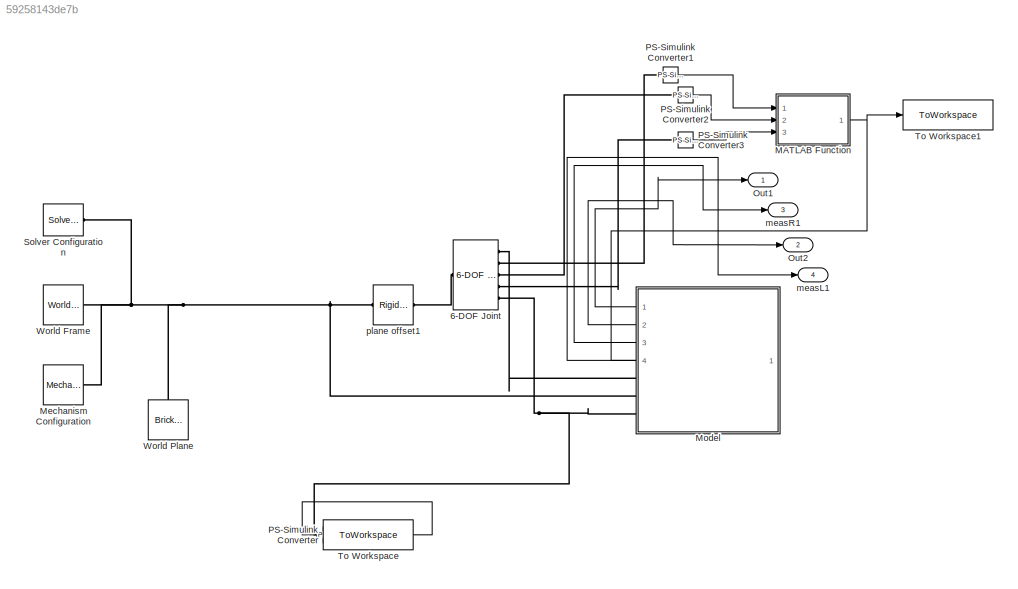
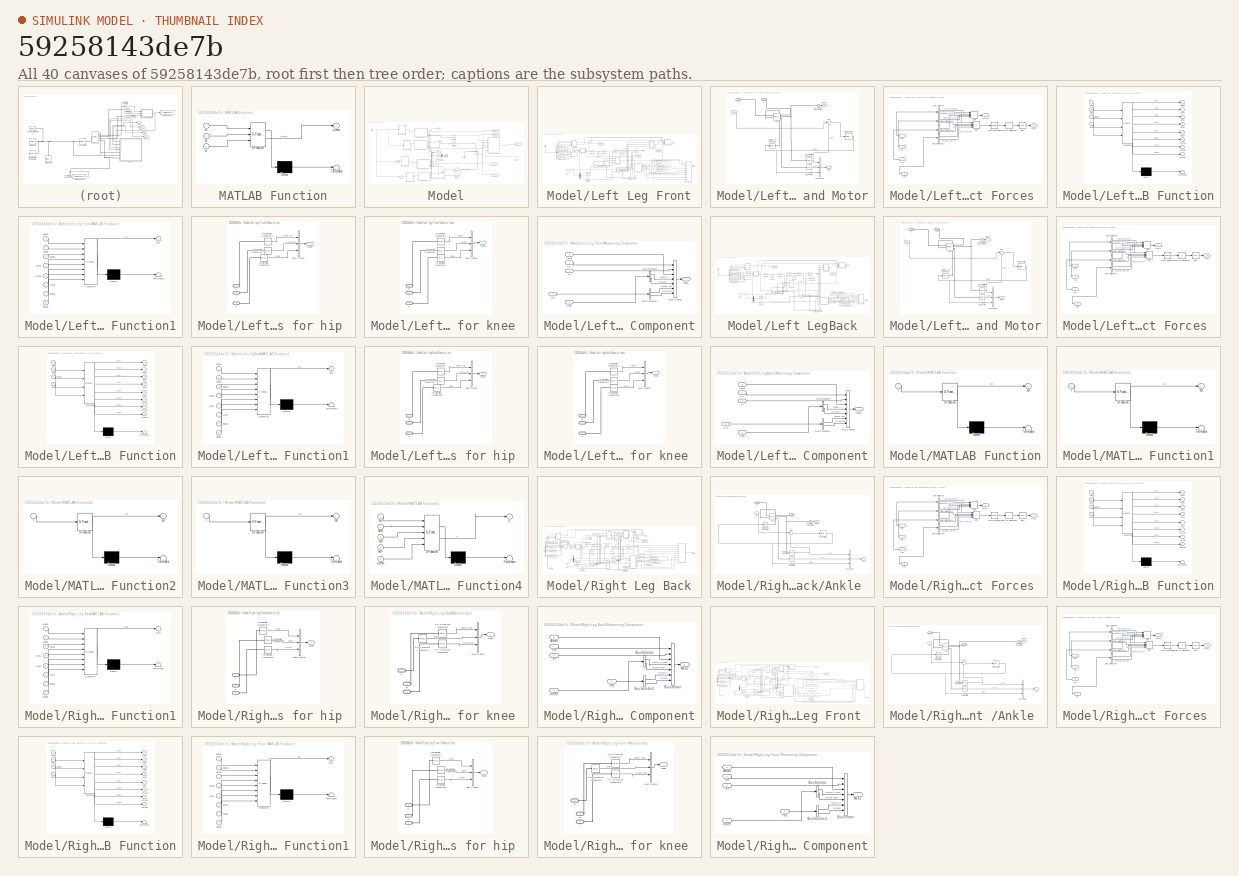
[diagram: thumbnail index - all 40 canvases of the model, root first then tree order]
MODEL slx_59258143de7b
KIND model
CONFIG AbsTol = auto
CONFIG EnableMultiTasking = on
CONFIG FixedStep = auto
CONFIG MaxStep = auto
CONFIG MinStep = auto
CONFIG RelTol = 1e-3
CONFIG SampleTimeConstraint = Unconstrained
CONFIG SolverName = ode15s
CONFIG StartTime = 0.0
CONFIG StopTime = 10.0
BLOCK [Reference] 6-DOF Joint  REF=sm_lib/Joints/6-DOF Joint
  Ports = [0, 0, 0, 0, 0, 1, 5]
  SourceBlock = sm_lib/Joints/6-DOF Joint
  SourceProductBaseCode = MS
  SourceType = 6-DOF Joint
BLOCK [SubSystem] MATLAB Function
  ErrorFcn = Stateflow.Translate.translate
  PermitHierarchicalResolution = ExplicitOnly
  Ports = [3, 1]
  RequestExecContextInheritance = off
  SFBlockType = MATLAB Function
  TreatAsAtomicUnit = on
BLOCK [Demux] MATLAB Function/ Demux 
  Outputs = 1
  Ports = [1, 1]
BLOCK [S-Function] MATLAB Function/ SFunction 
  EnableBusSupport = on
  FunctionName = sf_sfun
  PortCounts = [3 2]
  Ports = [3, 2]
  SFcnIsStateOwnerBlock = off
  SFunctionDeploymentMode = off
  Tag = Stateflow S-Function 14
BLOCK [Terminator] MATLAB Function/ Terminator 
BLOCK [Outport] MATLAB Function/v_torso
BLOCK [Inport] MATLAB Function/vx
BLOCK [Inport] MATLAB Function/vy
  Port = 2
BLOCK [Inport] MATLAB Function/vz
  Port = 3
BLOCK [Reference] Mechanism Configuration  REF=sm_lib/Utilities/Mechanism
Configuration
  Ports = [0, 0, 0, 0, 0, 0, 1]
  SourceBlock = sm_lib/Utilities/Mechanism\nConfiguration
  SourceProductBaseCode = MS
  SourceType = Mechanism\nConfiguration
BLOCK [SubSystem] Model
  PortSchema = {"entries":[{"content":{"sides":[{"content":{"connectorIds":[]},"type":"ConnectorPlacement.EquallySpacedRectSide","uuid":"648e0f1c-94fd-432d-b314-f859853b28dc"},{"content":{"connectorIds":["Out1","Out2","In1","Out3","Out4","RConn1","RConn2","RConn3"],"side":"RIGHT"},"type":"ConnectorPlacement.EquallySpacedRectSide","uuid":"4a085109-6c7b-452e-9c34-33db191f9143"},{"content":{"connectorIds":[],"side"...<+289ch>
  Ports = [1, 4, 0, 0, 0, 0, 3]
  RequestExecContextInheritance = off
BLOCK [Bias] Model/Bias1
  Bias = -curveData.gaitPeriod/2
BLOCK [Bias] Model/Bias2
  Bias = -curveData.gaitPeriod/2
BLOCK [Clock] Model/Clock
BLOCK [Demux] Model/Demux
  NameLocation = top
  Ports = [1, 4]
BLOCK [PMIOPort] Model/G
  Port = 2
  Side = Right
BLOCK [SubSystem] Model/Left Leg Front
  PortSchema = {"entries":[{"content":{"sides":[{"content":{"connectorIds":["In1"]},"type":"ConnectorPlacement.EquallySpacedRectSide","uuid":"1507813e-36a9-49af-9b0a-e3846bbe4283"},{"content":{"connectorIds":["Out1","Out2","In2","RConn1","RConn2"],"side":"RIGHT"},"type":"ConnectorPlacement.EquallySpacedRectSide","uuid":"5066f35d-c1fd-4314-a197-bec554758284"},{"content":{"connectorIds":[],"side":"TOP"},"type":"Co...<+271ch>
  Ports = [2, 2, 0, 0, 0, 0, 2]
  RequestExecContextInheritance = off
BLOCK [SubSystem] Model/Left Leg Front/Ankle and Motor
  Ports = [1, 2, 0, 0, 0, 1, 1]
  RequestExecContextInheritance = off
BLOCK [Reference] Model/Left Leg Front/Ankle and Motor/Ankle  REF=sm_lib/Joints/Revolute Joint
  Ports = [0, 0, 0, 0, 0, 2, 3]
  SourceBlock = sm_lib/Joints/Revolute Joint
  SourceProductBaseCode = MS
  SourceType = Revolute Joint
BLOCK [PMIOPort] Model/Left Leg Front/Ankle and Motor/B
  Side = Left
BLOCK [BusCreator] Model/Left Leg Front/Ankle and Motor/Bus Creator
  DisplayOption = bar
  InheritFromInputs = on
  Inputs = 3
  Ports = [3, 1]
BLOCK [PMIOPort] Model/Left Leg Front/Ankle and Motor/F
  Port = 2
  Side = Right
BLOCK [Outport] Model/Left Leg Front/Ankle and Motor/Outport
  Port = 2
BLOCK [Reference] Model/Left Leg Front/Ankle and Motor/PID Controller  REF=pid_lib/PID Controller
  Ports = [1, 1]
  SourceBlock = pid_lib/PID Controller
  SourceProductBaseCode = SL
  SourceType = PID 1dof
BLOCK [Reference] Model/Left Leg Front/Ankle and Motor/PS-Simulink Converter  REF=nesl_utility/PS-Simulink
Converter
  NameLocation = top
  Ports = [0, 1, 0, 0, 0, 1]
  SourceBlock = nesl_utility/PS-Simulink\nConverter
  SourceProductBaseCode = PW,SS
  SourceType = PS-Simulink\nConverter
BLOCK [Reference] Model/Left Leg Front/Ankle and Motor/PS-Simulink Converter1  REF=nesl_utility/PS-Simulink
Converter
  Ports = [0, 1, 0, 0, 0, 1]
  SourceBlock = nesl_utility/PS-Simulink\nConverter
  SourceProductBaseCode = PW,SS
  SourceType = PS-Simulink\nConverter
BLOCK [Reference] Model/Left Leg Front/Ankle and Motor/PS-Simulink Converter2  REF=nesl_utility/PS-Simulink
Converter
  Ports = [0, 1, 0, 0, 0, 1]
  SourceBlock = nesl_utility/PS-Simulink\nConverter
  SourceProductBaseCode = PW,SS
  SourceType = PS-Simulink\nConverter
BLOCK [Reference] Model/Left Leg Front/Ankle and Motor/Simulink-PS Converter  REF=nesl_utility/Simulink-PS
Converter
  Ports = [1, 0, 0, 0, 0, 0, 1]
  SourceBlock = nesl_utility/Simulink-PS\nConverter
  SourceProductBaseCode = PW,SS
  SourceType = Simulink-PS\nConverter
BLOCK [Sum] Model/Left Leg Front/Ankle and Motor/Sum
  Inputs = |+-
  Ports = [2, 1]
BLOCK [Outport] Model/Left Leg Front/Ankle and Motor/meas
  VectorParamsAs1DForOutWhenUnconnected = off
BLOCK [Inport] Model/Left Leg Front/Ankle and Motor/qref
BLOCK [Reference] Model/Left Leg Front/Ankle to Lower Leg1  REF=sm_lib/Frames and
Transforms/Rigid
Transform
  Ports = [0, 0, 0, 0, 0, 1, 1]
  SourceBlock = sm_lib/Frames and\nTransforms/Rigid\nTransform
  SourceProductBaseCode = MS
  SourceType = Rigid\nTransform
BLOCK [SubSystem] Model/Left Leg Front/Contact Forces 
  Ports = [4, 2]
  RequestExecContextInheritance = off
BLOCK [Sum] Model/Left Leg Front/Contact Forces /Add
  IconShape = rectangular
  Inputs = ++++
  Ports = [4, 1]
BLOCK [Sum] Model/Left Leg Front/Contact Forces /Add1
  IconShape = rectangular
  Inputs = ++++
  Ports = [4, 1]
BLOCK [BusSelector] Model/Left Leg Front/Contact Forces /Bus Selector
  OutputSignals = Normal Force,Friction Force
  Ports = [1, 2]
BLOCK [BusSelector] Model/Left Leg Front/Contact Forces /Bus Selector1
  OutputSignals = Normal Force,Friction Force
  Ports = [1, 2]
BLOCK [BusSelector] Model/Left Leg Front/Contact Forces /Bus Selector2
  OutputSignals = Normal Force,Friction Force
  Ports = [1, 2]
BLOCK [BusSelector] Model/Left Leg Front/Contact Forces /Bus Selector3
  OutputSignals = Normal Force,Friction Force
  Ports = [1, 2]
BLOCK [Inport] Model/Left Leg Front/Contact Forces /In1
BLOCK [Inport] Model/Left Leg Front/Contact Forces /In2
  Port = 2
BLOCK [Inport] Model/Left Leg Front/Contact Forces /In3
  Port = 3
BLOCK [Inport] Model/Left Leg Front/Contact Forces /In4
  Port = 4
BLOCK [Math] Model/Left Leg Front/Contact Forces /Math Function
  Operator = square
  Ports = [1, 1]
  SignedPower = on
BLOCK [Outport] Model/Left Leg Front/Contact Forces /Out1
  VectorParamsAs1DForOutWhenUnconnected = off
BLOCK [Outport] Model/Left Leg Front/Contact Forces /Out2
  Port = 2
  VectorParamsAs1DForOutWhenUnconnected = off
BLOCK [Sqrt] Model/Left Leg Front/Contact Forces /Sqrt
BLOCK [Sum] Model/Left Leg Front/Contact Forces /Sum of Elements
  IconShape = rectangular
  Inputs = +
  Ports = [1, 1]
BLOCK [Demux] Model/Left Leg Front/Demux
  Outputs = 3
  Ports = [1, 3]
BLOCK [Reference] Model/Left Leg Front/Foot to Ankle1  REF=sm_lib/Frames and
Transforms/Rigid
Transform
  Ports = [0, 0, 0, 0, 0, 1, 1]
  SourceBlock = sm_lib/Frames and\nTransforms/Rigid\nTransform
  SourceProductBaseCode = MS
  SourceType = Rigid\nTransform
BLOCK [Reference] Model/Left Leg Front/Foot1  REF=sm_lib/Body Elements/Brick Solid
  Ports = [0, 0, 0, 0, 0, 3, 2]
  SourceBlock = sm_lib/Body Elements/Brick Solid
  SourceProductBaseCode = MS
  SourceType = Brick Solid
BLOCK [PMIOPort] Model/Left Leg Front/G
  Side = Right
BLOCK [PMIOPort] Model/Left Leg Front/H
  Port = 2
  Side = Right
BLOCK [Reference] Model/Left Leg Front/Hip to World1  REF=sm_lib/Frames and
Transforms/Rigid
Transform
  Ports = [0, 0, 0, 0, 0, 1, 1]
  SourceBlock = sm_lib/Frames and\nTransforms/Rigid\nTransform
  SourceProductBaseCode = MS
  SourceType = Rigid\nTransform
BLOCK [Reference] Model/Left Leg Front/Hip1  REF=sm_lib/Joints/Revolute Joint
  Ports = [0, 0, 0, 0, 0, 2, 4]
  SourceBlock = sm_lib/Joints/Revolute Joint
  SourceProductBaseCode = MS
  SourceType = Revolute Joint
BLOCK [Inport] Model/Left Leg Front/In2
  Port = 2
BLOCK [Reference] Model/Left Leg Front/Knee to Upper Leg1  REF=sm_lib/Frames and
Transforms/Rigid
Transform
  Ports = [0, 0, 0, 0, 0, 1, 1]
  SourceBlock = sm_lib/Frames and\nTransforms/Rigid\nTransform
  SourceProductBaseCode = MS
  SourceType = Rigid\nTransform
BLOCK [Reference] Model/Left Leg Front/Knee1  REF=sm_lib/Joints/Revolute Joint
  Ports = [0, 0, 0, 0, 0, 2, 4]
  SourceBlock = sm_lib/Joints/Revolute Joint
  SourceProductBaseCode = MS
  SourceType = Revolute Joint
BLOCK [Reference] Model/Left Leg Front/Lower Leg to Knee1  REF=sm_lib/Frames and
Transforms/Rigid
Transform
  Ports = [0, 0, 0, 0, 0, 1, 1]
  SourceBlock = sm_lib/Frames and\nTransforms/Rigid\nTransform
  SourceProductBaseCode = MS
  SourceType = Rigid\nTransform
BLOCK [Reference] Model/Left Leg Front/Lower Leg1  REF=sm_lib/Body Elements/Cylindrical Solid
  NameLocation = right
  Ports = [0, 0, 0, 0, 0, 0, 1]
  SourceBlock = sm_lib/Body Elements/Cylindrical Solid
  SourceProductBaseCode = MS
  SourceType = Cylindrical Solid
BLOCK [SubSystem] Model/Left Leg Front/MATLAB Function
  ErrorFcn = Stateflow.Translate.translate
  PermitHierarchicalResolution = ExplicitOnly
  Ports = [4, 8]
  RequestExecContextInheritance = off
  SFBlockType = MATLAB Function
  TreatAsAtomicUnit = on
BLOCK [Demux] Model/Left Leg Front/MATLAB Function/ Demux 
  Outputs = 1
  Ports = [1, 1]
BLOCK [S-Function] Model/Left Leg Front/MATLAB Function/ SFunction 
  EnableBusSupport = on
  FunctionName = sf_sfun
  PortCounts = [4 9]
  Ports = [4, 9]
  SFcnIsStateOwnerBlock = off
  SFunctionDeploymentMode = off
  Tag = Stateflow S-Function 6
BLOCK [Terminator] Model/Left Leg Front/MATLAB Function/ Terminator 
BLOCK [Inport] Model/Left Leg Front/MATLAB Function/Qquat
  Port = 3
BLOCK [Outport] Model/Left Leg Front/MATLAB Function/ab1g
  Port = 4
BLOCK [Outport] Model/Left Leg Front/MATLAB Function/ab2g
  Port = 5
BLOCK [Outport] Model/Left Leg Front/MATLAB Function/cmb1g
  Port = 6
BLOCK [Outport] Model/Left Leg Front/MATLAB Function/cmb2g
  Port = 7
BLOCK [Outport] Model/Left Leg Front/MATLAB Function/cmb3g
  Port = 8
BLOCK [Outport] Model/Left Leg Front/MATLAB Function/eb1g
BLOCK [Outport] Model/Left Leg Front/MATLAB Function/eb2g
  Port = 2
BLOCK [Outport] Model/Left Leg Front/MATLAB Function/eb3g
  Port = 3
BLOCK [Inport] Model/Left Leg Front/MATLAB Function/qab
  Port = 2
BLOCK [Inport] Model/Left Leg Front/MATLAB Function/qhb
BLOCK [Inport] Model/Left Leg Front/MATLAB Function/qkb
  Port = 4
BLOCK [SubSystem] Model/Left Leg Front/MATLAB Function1
  ErrorFcn = Stateflow.Translate.translate
  PermitHierarchicalResolution = ExplicitOnly
  Ports = [8, 1]
  RequestExecContextInheritance = off
  SFBlockType = MATLAB Function
  TreatAsAtomicUnit = on
BLOCK [Demux] Model/Left Leg Front/MATLAB Function1/ Demux 
  Outputs = 1
  Ports = [1, 1]
BLOCK [S-Function] Model/Left Leg Front/MATLAB Function1/ SFunction 
  EnableBusSupport = on
  FunctionName = sf_sfun
  PortCounts = [8 2]
  Ports = [8, 2]
  SFcnIsStateOwnerBlock = off
  SFunctionDeploymentMode = off
  Tag = Stateflow S-Function 11
BLOCK [Terminator] Model/Left Leg Front/MATLAB Function1/ Terminator 
BLOCK [Inport] Model/Left Leg Front/MATLAB Function1/ab10g
  Port = 3
BLOCK [Inport] Model/Left Leg Front/MATLAB Function1/ab20g
  Port = 8
BLOCK [Inport] Model/Left Leg Front/MATLAB Function1/cmb1
  Port = 5
BLOCK [Inport] Model/Left Leg Front/MATLAB Function1/cmb2
  Port = 4
BLOCK [Inport] Model/Left Leg Front/MATLAB Function1/cmb3
  Port = 6
BLOCK [Inport] Model/Left Leg Front/MATLAB Function1/eb10g
BLOCK [Inport] Model/Left Leg Front/MATLAB Function1/eb20g
  Port = 2
BLOCK [Inport] Model/Left Leg Front/MATLAB Function1/eb30g
  Port = 7
BLOCK [Outport] Model/Left Leg Front/MATLAB Function1/hLF
BLOCK [Outport] Model/Left Leg Front/Meas L 
  VectorParamsAs1DForOutWhenUnconnected = off
BLOCK [SubSystem] Model/Left Leg Front/Meas for hip 
  Ports = [0, 1, 0, 0, 0, 3]
  RequestExecContextInheritance = off
BLOCK [BusCreator] Model/Left Leg Front/Meas for hip /Bus Creator
  DisplayOption = bar
  InheritFromInputs = on
  Inputs = 3
  Ports = [3, 1]
BLOCK [Reference] Model/Left Leg Front/Meas for hip /PS-Simulink Converter1  REF=nesl_utility/PS-Simulink
Converter
  Ports = [0, 1, 0, 0, 0, 1]
  SourceBlock = nesl_utility/PS-Simulink\nConverter
  SourceProductBaseCode = PW,SS
  SourceType = PS-Simulink\nConverter
BLOCK [Reference] Model/Left Leg Front/Meas for hip /PS-Simulink Converter2  REF=nesl_utility/PS-Simulink
Converter
  Ports = [0, 1, 0, 0, 0, 1]
  SourceBlock = nesl_utility/PS-Simulink\nConverter
  SourceProductBaseCode = PW,SS
  SourceType = PS-Simulink\nConverter
BLOCK [Reference] Model/Left Leg Front/Meas for hip /PS-Simulink Converter3  REF=nesl_utility/PS-Simulink
Converter
  Ports = [0, 1, 0, 0, 0, 1]
  SourceBlock = nesl_utility/PS-Simulink\nConverter
  SourceProductBaseCode = PW,SS
  SourceType = PS-Simulink\nConverter
BLOCK [Outport] Model/Left Leg Front/Meas for hip /meas
  VectorParamsAs1DForOutWhenUnconnected = off
BLOCK [PMIOPort] Model/Left Leg Front/Meas for hip /q
  Port = 2
  Side = Left
BLOCK [PMIOPort] Model/Left Leg Front/Meas for hip /t
  Port = 3
  Side = Left
BLOCK [PMIOPort] Model/Left Leg Front/Meas for hip /w
  Side = Left
BLOCK [SubSystem] Model/Left Leg Front/Meas for knee 
  Ports = [0, 1, 0, 0, 0, 3]
  RequestExecContextInheritance = off
BLOCK [BusCreator] Model/Left Leg Front/Meas for knee /Bus Creator
  DisplayOption = bar
  InheritFromInputs = on
  Inputs = 3
  Ports = [3, 1]
BLOCK [Reference] Model/Left Leg Front/Meas for knee /PS-Simulink Converter1  REF=nesl_utility/PS-Simulink
Converter
  Ports = [0, 1, 0, 0, 0, 1]
  SourceBlock = nesl_utility/PS-Simulink\nConverter
  SourceProductBaseCode = PW,SS
  SourceType = PS-Simulink\nConverter
BLOCK [Reference] Model/Left Leg Front/Meas for knee /PS-Simulink Converter2  REF=nesl_utility/PS-Simulink
Converter
  Ports = [0, 1, 0, 0, 0, 1]
  SourceBlock = nesl_utility/PS-Simulink\nConverter
  SourceProductBaseCode = PW,SS
  SourceType = PS-Simulink\nConverter
BLOCK [Reference] Model/Left Leg Front/Meas for knee /PS-Simulink Converter3  REF=nesl_utility/PS-Simulink
Converter
  Ports = [0, 1, 0, 0, 0, 1]
  SourceBlock = nesl_utility/PS-Simulink\nConverter
  SourceProductBaseCode = PW,SS
  SourceType = PS-Simulink\nConverter
BLOCK [Outport] Model/Left Leg Front/Meas for knee /meas
  VectorParamsAs1DForOutWhenUnconnected = off
BLOCK [PMIOPort] Model/Left Leg Front/Meas for knee /q
  Port = 2
  Side = Left
BLOCK [PMIOPort] Model/Left Leg Front/Meas for knee /t
  Port = 3
  Side = Left
BLOCK [PMIOPort] Model/Left Leg Front/Meas for knee /w
  Side = Left
BLOCK [SubSystem] Model/Left Leg Front/Measuring Component
  Ports = [5, 1]
  RequestExecContextInheritance = off
BLOCK [Inport] Model/Left Leg Front/Measuring Component/Ankle
  Port = 5
BLOCK [BusCreator] Model/Left Leg Front/Measuring Component/Bus Creator
  DisplayOption = bar
  InheritFromInputs = on
  Inputs = 7
  Ports = [7, 1]
BLOCK [BusSelector] Model/Left Leg Front/Measuring Component/Bus Selector
  OutputSignals = velocity,torque
  Ports = [1, 2]
BLOCK [BusSelector] Model/Left Leg Front/Measuring Component/Bus Selector1
  OutputSignals = velocity hip,torque hip
  Ports = [1, 2]
BLOCK [Inport] Model/Left Leg Front/Measuring Component/Fn
BLOCK [Inport] Model/Left Leg Front/Measuring Component/Fr
  Port = 3
BLOCK [Inport] Model/Left Leg Front/Measuring Component/Hip
  Port = 2
BLOCK [Inport] Model/Left Leg Front/Measuring Component/Knee
  Port = 4
BLOCK [Outport] Model/Left Leg Front/Measuring Component/Meas
  VectorParamsAs1DForOutWhenUnconnected = off
BLOCK [Outport] Model/Left Leg Front/Outport
  Port = 2
BLOCK [Reference] Model/Left Leg Front/PS-Simulink Converter  REF=nesl_utility/PS-Simulink
Converter
  NameLocation = right
  Ports = [0, 1, 0, 0, 0, 1]
  SourceBlock = nesl_utility/PS-Simulink\nConverter
  SourceProductBaseCode = PW,SS
  SourceType = PS-Simulink\nConverter
BLOCK [Reference] Model/Left Leg Front/PS-Simulink Converter1  REF=nesl_utility/PS-Simulink
Converter
  NameLocation = right
  Ports = [0, 1, 0, 0, 0, 1]
  SourceBlock = nesl_utility/PS-Simulink\nConverter
  SourceProductBaseCode = PW,SS
  SourceType = PS-Simulink\nConverter
BLOCK [Reference] Model/Left Leg Front/Simulink-PS Converter  REF=nesl_utility/Simulink-PS
Converter
  Ports = [1, 0, 0, 0, 0, 0, 1]
  SourceBlock = nesl_utility/Simulink-PS\nConverter
  SourceProductBaseCode = PW,SS
  SourceType = Simulink-PS\nConverter
BLOCK [Reference] Model/Left Leg Front/Simulink-PS Converter1  REF=nesl_utility/Simulink-PS
Converter
  Ports = [1, 0, 0, 0, 0, 0, 1]
  SourceBlock = nesl_utility/Simulink-PS\nConverter
  SourceProductBaseCode = PW,SS
  SourceType = Simulink-PS\nConverter
BLOCK [Reference] Model/Left Leg Front/Sphere to Plane Force1  REF=Contact_Forces_Lib/3D/Sphere to Plane Force
  Ports = [0, 1, 0, 0, 0, 1, 1]
  SourceBlock = Contact_Forces_Lib/3D/Sphere to Plane Force
  SourceProductName = Simscape Multibody Contact Forces Library
  SourceType = Sphere to Plane Force
BLOCK [Reference] Model/Left Leg Front/Sphere to Plane Force2  REF=Contact_Forces_Lib/3D/Sphere to Plane Force
  Ports = [0, 1, 0, 0, 0, 1, 1]
  SourceBlock = Contact_Forces_Lib/3D/Sphere to Plane Force
  SourceProductName = Simscape Multibody Contact Forces Library
  SourceType = Sphere to Plane Force
BLOCK [Reference] Model/Left Leg Front/Sphere to Plane Force3  REF=Contact_Forces_Lib/3D/Sphere to Plane Force
  Ports = [0, 1, 0, 0, 0, 1, 1]
  SourceBlock = Contact_Forces_Lib/3D/Sphere to Plane Force
  SourceProductName = Simscape Multibody Contact Forces Library
  SourceType = Sphere to Plane Force
BLOCK [Reference] Model/Left Leg Front/Sphere to Plane Force4  REF=Contact_Forces_Lib/3D/Sphere to Plane Force
  Ports = [0, 1, 0, 0, 0, 1, 1]
  SourceBlock = Contact_Forces_Lib/3D/Sphere to Plane Force
  SourceProductName = Simscape Multibody Contact Forces Library
  SourceType = Sphere to Plane Force
BLOCK [ToWorkspace] Model/Left Leg Front/To Workspace
  FixptAsFi = on
  MaxDataPoints = inf
  Ports = [1]
  SampleTime = -1
  SaveFormat = Timeseries
  VariableName = LFAnkle_measures
BLOCK [ToWorkspace] Model/Left Leg Front/To Workspace1
  FixptAsFi = on
  MaxDataPoints = inf
  Ports = [1]
  SampleTime = -1
  SaveFormat = Timeseries
  VariableName = LFKnee_measures
BLOCK [ToWorkspace] Model/Left Leg Front/To Workspace2
  FixptAsFi = on
  MaxDataPoints = inf
  Ports = [1]
  SampleTime = -1
  SaveFormat = Timeseries
  VariableName = LFHip_measures
BLOCK [ToWorkspace] Model/Left Leg Front/To Workspace3
  FixptAsFi = on
  MaxDataPoints = inf
  Ports = [1]
  SampleTime = -1
  SaveFormat = Timeseries
  VariableName = eb10g
BLOCK [ToWorkspace] Model/Left Leg Front/To Workspace4
  FixptAsFi = on
  MaxDataPoints = inf
  Ports = [1]
  SampleTime = -1
  SaveFormat = Timeseries
  VariableName = eb20g
BLOCK [ToWorkspace] Model/Left Leg Front/To Workspace5
  FixptAsFi = on
  MaxDataPoints = inf
  Ports = [1]
  SampleTime = -1
  SaveFormat = Timeseries
  VariableName = ab10g
BLOCK [ToWorkspace] Model/Left Leg Front/To Workspace6
  FixptAsFi = on
  MaxDataPoints = inf
  Ports = [1]
  SampleTime = -1
  SaveFormat = Timeseries
  VariableName = ab20g
BLOCK [ToWorkspace] Model/Left Leg Front/To Workspace7
  FixptAsFi = on
  MaxDataPoints = inf
  Ports = [1]
  SampleTime = -1
  SaveFormat = Timeseries
  VariableName = cmb1
BLOCK [ToWorkspace] Model/Left Leg Front/To Workspace8
  FixptAsFi = on
  MaxDataPoints = inf
  Ports = [1]
  SampleTime = -1
  SaveFormat = Timeseries
  VariableName = cmb2
BLOCK [Reference] Model/Left Leg Front/Upper Leg1  REF=sm_lib/Body Elements/Cylindrical Solid
  NameLocation = right
  Ports = [0, 0, 0, 0, 0, 0, 1]
  SourceBlock = sm_lib/Body Elements/Cylindrical Solid
  SourceProductBaseCode = MS
  SourceType = Cylindrical Solid
BLOCK [Reference] Model/Left Leg Front/Upper leg to Hip1  REF=sm_lib/Frames and
Transforms/Rigid
Transform
  Ports = [0, 0, 0, 0, 0, 1, 1]
  SourceBlock = sm_lib/Frames and\nTransforms/Rigid\nTransform
  SourceProductBaseCode = MS
  SourceType = Rigid\nTransform
BLOCK [Inport] Model/Left Leg Front/qref
BLOCK [SubSystem] Model/Left LegBack
  PortSchema = {"entries":[{"content":{"sides":[{"content":{"connectorIds":["In1"]},"type":"ConnectorPlacement.EquallySpacedRectSide","uuid":"22ee734e-d516-4767-9dd7-a84a6d7499a1"},{"content":{"connectorIds":["Out1","In2","Out2","RConn1","RConn2"],"side":"RIGHT"},"type":"ConnectorPlacement.EquallySpacedRectSide","uuid":"10c942f7-94ea-46a3-ba7f-65e81ae36ff4"},{"content":{"connectorIds":[],"side":"TOP"},"type":"Co...<+271ch>
  Ports = [2, 2, 0, 0, 0, 0, 2]
  RequestExecContextInheritance = off
BLOCK [SubSystem] Model/Left LegBack/Ankle and Motor
  Ports = [1, 2, 0, 0, 0, 1, 1]
  RequestExecContextInheritance = off
BLOCK [Reference] Model/Left LegBack/Ankle and Motor/Ankle  REF=sm_lib/Joints/Revolute Joint
  Ports = [0, 0, 0, 0, 0, 2, 3]
  SourceBlock = sm_lib/Joints/Revolute Joint
  SourceProductBaseCode = MS
  SourceType = Revolute Joint
BLOCK [PMIOPort] Model/Left LegBack/Ankle and Motor/B
  Side = Left
BLOCK [BusCreator] Model/Left LegBack/Ankle and Motor/Bus Creator
  DisplayOption = bar
  InheritFromInputs = on
  Inputs = 3
  Ports = [3, 1]
BLOCK [PMIOPort] Model/Left LegBack/Ankle and Motor/F
  Port = 2
  Side = Right
BLOCK [Outport] Model/Left LegBack/Ankle and Motor/Outport
  Port = 2
BLOCK [Reference] Model/Left LegBack/Ankle and Motor/PID Controller  REF=pid_lib/PID Controller
  Ports = [1, 1]
  SourceBlock = pid_lib/PID Controller
  SourceProductBaseCode = SL
  SourceType = PID 1dof
BLOCK [Reference] Model/Left LegBack/Ankle and Motor/PS-Simulink Converter  REF=nesl_utility/PS-Simulink
Converter
  NameLocation = top
  Ports = [0, 1, 0, 0, 0, 1]
  SourceBlock = nesl_utility/PS-Simulink\nConverter
  SourceProductBaseCode = PW,SS
  SourceType = PS-Simulink\nConverter
BLOCK [Reference] Model/Left LegBack/Ankle and Motor/PS-Simulink Converter1  REF=nesl_utility/PS-Simulink
Converter
  Ports = [0, 1, 0, 0, 0, 1]
  SourceBlock = nesl_utility/PS-Simulink\nConverter
  SourceProductBaseCode = PW,SS
  SourceType = PS-Simulink\nConverter
BLOCK [Reference] Model/Left LegBack/Ankle and Motor/PS-Simulink Converter2  REF=nesl_utility/PS-Simulink
Converter
  Ports = [0, 1, 0, 0, 0, 1]
  SourceBlock = nesl_utility/PS-Simulink\nConverter
  SourceProductBaseCode = PW,SS
  SourceType = PS-Simulink\nConverter
BLOCK [Reference] Model/Left LegBack/Ankle and Motor/Simulink-PS Converter  REF=nesl_utility/Simulink-PS
Converter
  Ports = [1, 0, 0, 0, 0, 0, 1]
  SourceBlock = nesl_utility/Simulink-PS\nConverter
  SourceProductBaseCode = PW,SS
  SourceType = Simulink-PS\nConverter
BLOCK [Sum] Model/Left LegBack/Ankle and Motor/Sum
  Inputs = |+-
  Ports = [2, 1]
BLOCK [Outport] Model/Left LegBack/Ankle and Motor/meas
  VectorParamsAs1DForOutWhenUnconnected = off
BLOCK [Inport] Model/Left LegBack/Ankle and Motor/qref
BLOCK [Reference] Model/Left LegBack/Ankle to Lower Leg1  REF=sm_lib/Frames and
Transforms/Rigid
Transform
  Ports = [0, 0, 0, 0, 0, 1, 1]
  SourceBlock = sm_lib/Frames and\nTransforms/Rigid\nTransform
  SourceProductBaseCode = MS
  SourceType = Rigid\nTransform
BLOCK [SubSystem] Model/Left LegBack/Contact Forces 
  Ports = [4, 2]
  RequestExecContextInheritance = off
BLOCK [Sum] Model/Left LegBack/Contact Forces /Add
  IconShape = rectangular
  Inputs = ++++
  Ports = [4, 1]
BLOCK [Sum] Model/Left LegBack/Contact Forces /Add1
  IconShape = rectangular
  Inputs = ++++
  Ports = [4, 1]
BLOCK [BusSelector] Model/Left LegBack/Contact Forces /Bus Selector
  OutputSignals = Normal Force,Friction Force
  Ports = [1, 2]
BLOCK [BusSelector] Model/Left LegBack/Contact Forces /Bus Selector1
  OutputSignals = Normal Force,Friction Force
  Ports = [1, 2]
BLOCK [BusSelector] Model/Left LegBack/Contact Forces /Bus Selector2
  OutputSignals = Normal Force,Friction Force
  Ports = [1, 2]
BLOCK [BusSelector] Model/Left LegBack/Contact Forces /Bus Selector3
  OutputSignals = Normal Force,Friction Force
  Ports = [1, 2]
BLOCK [Inport] Model/Left LegBack/Contact Forces /In1
BLOCK [Inport] Model/Left LegBack/Contact Forces /In2
  Port = 2
BLOCK [Inport] Model/Left LegBack/Contact Forces /In3
  Port = 3
BLOCK [Inport] Model/Left LegBack/Contact Forces /In4
  Port = 4
BLOCK [Math] Model/Left LegBack/Contact Forces /Math Function
  Operator = square
  Ports = [1, 1]
  SignedPower = on
BLOCK [Outport] Model/Left LegBack/Contact Forces /Out1
  VectorParamsAs1DForOutWhenUnconnected = off
BLOCK [Outport] Model/Left LegBack/Contact Forces /Out2
  Port = 2
  VectorParamsAs1DForOutWhenUnconnected = off
BLOCK [Sqrt] Model/Left LegBack/Contact Forces /Sqrt
BLOCK [Sum] Model/Left LegBack/Contact Forces /Sum of Elements
  IconShape = rectangular
  Inputs = +
  Ports = [1, 1]
BLOCK [Demux] Model/Left LegBack/Demux
  Outputs = 3
  Ports = [1, 3]
BLOCK [Reference] Model/Left LegBack/Foot to Ankle1  REF=sm_lib/Frames and
Transforms/Rigid
Transform
  Ports = [0, 0, 0, 0, 0, 1, 1]
  SourceBlock = sm_lib/Frames and\nTransforms/Rigid\nTransform
  SourceProductBaseCode = MS
  SourceType = Rigid\nTransform
BLOCK [Reference] Model/Left LegBack/Foot1  REF=sm_lib/Body Elements/Brick Solid
  Ports = [0, 0, 0, 0, 0, 3, 2]
  SourceBlock = sm_lib/Body Elements/Brick Solid
  SourceProductBaseCode = MS
  SourceType = Brick Solid
BLOCK [PMIOPort] Model/Left LegBack/G
  Side = Right
BLOCK [PMIOPort] Model/Left LegBack/H
  Port = 2
  Side = Right
BLOCK [Reference] Model/Left LegBack/Hip to World1  REF=sm_lib/Frames and
Transforms/Rigid
Transform
  Ports = [0, 0, 0, 0, 0, 1, 1]
  SourceBlock = sm_lib/Frames and\nTransforms/Rigid\nTransform
  SourceProductBaseCode = MS
  SourceType = Rigid\nTransform
BLOCK [Reference] Model/Left LegBack/Hip1  REF=sm_lib/Joints/Revolute Joint
  Ports = [0, 0, 0, 0, 0, 2, 4]
  SourceBlock = sm_lib/Joints/Revolute Joint
  SourceProductBaseCode = MS
  SourceType = Revolute Joint
BLOCK [Inport] Model/Left LegBack/In2
  Port = 2
BLOCK [Reference] Model/Left LegBack/Knee to Upper Leg1  REF=sm_lib/Frames and
Transforms/Rigid
Transform
  Ports = [0, 0, 0, 0, 0, 1, 1]
  SourceBlock = sm_lib/Frames and\nTransforms/Rigid\nTransform
  SourceProductBaseCode = MS
  SourceType = Rigid\nTransform
BLOCK [Reference] Model/Left LegBack/Knee1  REF=sm_lib/Joints/Revolute Joint
  Ports = [0, 0, 0, 0, 0, 2, 4]
  SourceBlock = sm_lib/Joints/Revolute Joint
  SourceProductBaseCode = MS
  SourceType = Revolute Joint
BLOCK [Reference] Model/Left LegBack/Lower Leg to Knee1  REF=sm_lib/Frames and
Transforms/Rigid
Transform
  Ports = [0, 0, 0, 0, 0, 1, 1]
  SourceBlock = sm_lib/Frames and\nTransforms/Rigid\nTransform
  SourceProductBaseCode = MS
  SourceType = Rigid\nTransform
BLOCK [Reference] Model/Left LegBack/Lower Leg1  REF=sm_lib/Body Elements/Cylindrical Solid
  NameLocation = right
  Ports = [0, 0, 0, 0, 0, 0, 1]
  SourceBlock = sm_lib/Body Elements/Cylindrical Solid
  SourceProductBaseCode = MS
  SourceType = Cylindrical Solid
BLOCK [SubSystem] Model/Left LegBack/MATLAB Function
  ErrorFcn = Stateflow.Translate.translate
  PermitHierarchicalResolution = ExplicitOnly
  Ports = [4, 8]
  RequestExecContextInheritance = off
  SFBlockType = MATLAB Function
  TreatAsAtomicUnit = on
BLOCK [Demux] Model/Left LegBack/MATLAB Function/ Demux 
  Outputs = 1
  Ports = [1, 1]
BLOCK [S-Function] Model/Left LegBack/MATLAB Function/ SFunction 
  EnableBusSupport = on
  FunctionName = sf_sfun
  PortCounts = [4 9]
  Ports = [4, 9]
  SFcnIsStateOwnerBlock = off
  SFunctionDeploymentMode = off
  Tag = Stateflow S-Function 8
BLOCK [Terminator] Model/Left LegBack/MATLAB Function/ Terminator 
BLOCK [Inport] Model/Left LegBack/MATLAB Function/Qquat
  Port = 3
BLOCK [Outport] Model/Left LegBack/MATLAB Function/ad1g
  Port = 4
BLOCK [Outport] Model/Left LegBack/MATLAB Function/ad2g
  Port = 5
BLOCK [Outport] Model/Left LegBack/MATLAB Function/cmd1g
  Port = 6
BLOCK [Outport] Model/Left LegBack/MATLAB Function/cmd2g
  Port = 7
BLOCK [Outport] Model/Left LegBack/MATLAB Function/cmd3g
  Port = 8
BLOCK [Outport] Model/Left LegBack/MATLAB Function/ed1g
BLOCK [Outport] Model/Left LegBack/MATLAB Function/ed2g
  Port = 2
BLOCK [Outport] Model/Left LegBack/MATLAB Function/ed3g
  Port = 3
BLOCK [Inport] Model/Left LegBack/MATLAB Function/qad
  Port = 2
BLOCK [Inport] Model/Left LegBack/MATLAB Function/qhd
BLOCK [Inport] Model/Left LegBack/MATLAB Function/qkd
  Port = 4
BLOCK [SubSystem] Model/Left LegBack/MATLAB Function1
  ErrorFcn = Stateflow.Translate.translate
  PermitHierarchicalResolution = ExplicitOnly
  Ports = [8, 1]
  RequestExecContextInheritance = off
  SFBlockType = MATLAB Function
  TreatAsAtomicUnit = on
BLOCK [Demux] Model/Left LegBack/MATLAB Function1/ Demux 
  Outputs = 1
  Ports = [1, 1]
BLOCK [S-Function] Model/Left LegBack/MATLAB Function1/ SFunction 
  EnableBusSupport = on
  FunctionName = sf_sfun
  PortCounts = [8 2]
  Ports = [8, 2]
  SFcnIsStateOwnerBlock = off
  SFunctionDeploymentMode = off
  Tag = Stateflow S-Function 13
BLOCK [Terminator] Model/Left LegBack/MATLAB Function1/ Terminator 
BLOCK [Inport] Model/Left LegBack/MATLAB Function1/ad10g
  Port = 3
BLOCK [Inport] Model/Left LegBack/MATLAB Function1/ad20g
  Port = 8
BLOCK [Inport] Model/Left LegBack/MATLAB Function1/cmd1
  Port = 5
BLOCK [Inport] Model/Left LegBack/MATLAB Function1/cmd2
  Port = 4
BLOCK [Inport] Model/Left LegBack/MATLAB Function1/cmd3
  Port = 6
BLOCK [Inport] Model/Left LegBack/MATLAB Function1/ed10g
BLOCK [Inport] Model/Left LegBack/MATLAB Function1/ed20g
  Port = 2
BLOCK [Inport] Model/Left LegBack/MATLAB Function1/ed30g
  Port = 7
BLOCK [Outport] Model/Left LegBack/MATLAB Function1/hLB
BLOCK [Outport] Model/Left LegBack/Meas L 
  VectorParamsAs1DForOutWhenUnconnected = off
BLOCK [SubSystem] Model/Left LegBack/Meas for hip 
  Ports = [0, 1, 0, 0, 0, 3]
  RequestExecContextInheritance = off
BLOCK [BusCreator] Model/Left LegBack/Meas for hip /Bus Creator
  DisplayOption = bar
  InheritFromInputs = on
  Inputs = 3
  Ports = [3, 1]
BLOCK [Reference] Model/Left LegBack/Meas for hip /PS-Simulink Converter1  REF=nesl_utility/PS-Simulink
Converter
  Ports = [0, 1, 0, 0, 0, 1]
  SourceBlock = nesl_utility/PS-Simulink\nConverter
  SourceProductBaseCode = PW,SS
  SourceType = PS-Simulink\nConverter
BLOCK [Reference] Model/Left LegBack/Meas for hip /PS-Simulink Converter2  REF=nesl_utility/PS-Simulink
Converter
  Ports = [0, 1, 0, 0, 0, 1]
  SourceBlock = nesl_utility/PS-Simulink\nConverter
  SourceProductBaseCode = PW,SS
  SourceType = PS-Simulink\nConverter
BLOCK [Reference] Model/Left LegBack/Meas for hip /PS-Simulink Converter3  REF=nesl_utility/PS-Simulink
Converter
  Ports = [0, 1, 0, 0, 0, 1]
  SourceBlock = nesl_utility/PS-Simulink\nConverter
  SourceProductBaseCode = PW,SS
  SourceType = PS-Simulink\nConverter
BLOCK [Outport] Model/Left LegBack/Meas for hip /meas
  VectorParamsAs1DForOutWhenUnconnected = off
BLOCK [PMIOPort] Model/Left LegBack/Meas for hip /q
  Port = 2
  Side = Left
BLOCK [PMIOPort] Model/Left LegBack/Meas for hip /t
  Port = 3
  Side = Left
BLOCK [PMIOPort] Model/Left LegBack/Meas for hip /w
  Side = Left
BLOCK [SubSystem] Model/Left LegBack/Meas for knee 
  Ports = [0, 1, 0, 0, 0, 3]
  RequestExecContextInheritance = off
BLOCK [BusCreator] Model/Left LegBack/Meas for knee /Bus Creator
  DisplayOption = bar
  InheritFromInputs = on
  Inputs = 3
  Ports = [3, 1]
BLOCK [Reference] Model/Left LegBack/Meas for knee /PS-Simulink Converter1  REF=nesl_utility/PS-Simulink
Converter
  Ports = [0, 1, 0, 0, 0, 1]
  SourceBlock = nesl_utility/PS-Simulink\nConverter
  SourceProductBaseCode = PW,SS
  SourceType = PS-Simulink\nConverter
BLOCK [Reference] Model/Left LegBack/Meas for knee /PS-Simulink Converter2  REF=nesl_utility/PS-Simulink
Converter
  Ports = [0, 1, 0, 0, 0, 1]
  SourceBlock = nesl_utility/PS-Simulink\nConverter
  SourceProductBaseCode = PW,SS
  SourceType = PS-Simulink\nConverter
BLOCK [Reference] Model/Left LegBack/Meas for knee /PS-Simulink Converter3  REF=nesl_utility/PS-Simulink
Converter
  Ports = [0, 1, 0, 0, 0, 1]
  SourceBlock = nesl_utility/PS-Simulink\nConverter
  SourceProductBaseCode = PW,SS
  SourceType = PS-Simulink\nConverter
BLOCK [Outport] Model/Left LegBack/Meas for knee /meas
  VectorParamsAs1DForOutWhenUnconnected = off
BLOCK [PMIOPort] Model/Left LegBack/Meas for knee /q
  Port = 2
  Side = Left
BLOCK [PMIOPort] Model/Left LegBack/Meas for knee /t
  Port = 3
  Side = Left
BLOCK [PMIOPort] Model/Left LegBack/Meas for knee /w
  Side = Left
BLOCK [SubSystem] Model/Left LegBack/Measuring Component
  Ports = [5, 1]
  RequestExecContextInheritance = off
BLOCK [Inport] Model/Left LegBack/Measuring Component/Ankle
  Port = 5
BLOCK [BusCreator] Model/Left LegBack/Measuring Component/Bus Creator
  DisplayOption = bar
  InheritFromInputs = on
  Inputs = 7
  Ports = [7, 1]
BLOCK [BusSelector] Model/Left LegBack/Measuring Component/Bus Selector
  OutputSignals = velocity,torque
  Ports = [1, 2]
BLOCK [BusSelector] Model/Left LegBack/Measuring Component/Bus Selector1
  OutputSignals = velocity hip,torque hip
  Ports = [1, 2]
BLOCK [Inport] Model/Left LegBack/Measuring Component/Fn
BLOCK [Inport] Model/Left LegBack/Measuring Component/Fr
  Port = 3
BLOCK [Inport] Model/Left LegBack/Measuring Component/Hip
  Port = 2
BLOCK [Inport] Model/Left LegBack/Measuring Component/Knee
  Port = 4
BLOCK [Outport] Model/Left LegBack/Measuring Component/Meas
  VectorParamsAs1DForOutWhenUnconnected = off
BLOCK [Outport] Model/Left LegBack/Outport
  Port = 2
BLOCK [Reference] Model/Left LegBack/PS-Simulink Converter  REF=nesl_utility/PS-Simulink
Converter
  NameLocation = right
  Ports = [0, 1, 0, 0, 0, 1]
  SourceBlock = nesl_utility/PS-Simulink\nConverter
  SourceProductBaseCode = PW,SS
  SourceType = PS-Simulink\nConverter
BLOCK [Reference] Model/Left LegBack/PS-Simulink Converter1  REF=nesl_utility/PS-Simulink
Converter
  NameLocation = right
  Ports = [0, 1, 0, 0, 0, 1]
  SourceBlock = nesl_utility/PS-Simulink\nConverter
  SourceProductBaseCode = PW,SS
  SourceType = PS-Simulink\nConverter
BLOCK [Reference] Model/Left LegBack/Simulink-PS Converter  REF=nesl_utility/Simulink-PS
Converter
  Ports = [1, 0, 0, 0, 0, 0, 1]
  SourceBlock = nesl_utility/Simulink-PS\nConverter
  SourceProductBaseCode = PW,SS
  SourceType = Simulink-PS\nConverter
BLOCK [Reference] Model/Left LegBack/Simulink-PS Converter1  REF=nesl_utility/Simulink-PS
Converter
  Ports = [1, 0, 0, 0, 0, 0, 1]
  SourceBlock = nesl_utility/Simulink-PS\nConverter
  SourceProductBaseCode = PW,SS
  SourceType = Simulink-PS\nConverter
BLOCK [Reference] Model/Left LegBack/Sphere to Plane Force1  REF=Contact_Forces_Lib/3D/Sphere to Plane Force
  Ports = [0, 1, 0, 0, 0, 1, 1]
  SourceBlock = Contact_Forces_Lib/3D/Sphere to Plane Force
  SourceProductName = Simscape Multibody Contact Forces Library
  SourceType = Sphere to Plane Force
BLOCK [Reference] Model/Left LegBack/Sphere to Plane Force2  REF=Contact_Forces_Lib/3D/Sphere to Plane Force
  Ports = [0, 1, 0, 0, 0, 1, 1]
  SourceBlock = Contact_Forces_Lib/3D/Sphere to Plane Force
  SourceProductName = Simscape Multibody Contact Forces Library
  SourceType = Sphere to Plane Force
BLOCK [Reference] Model/Left LegBack/Sphere to Plane Force3  REF=Contact_Forces_Lib/3D/Sphere to Plane Force
  Ports = [0, 1, 0, 0, 0, 1, 1]
  SourceBlock = Contact_Forces_Lib/3D/Sphere to Plane Force
  SourceProductName = Simscape Multibody Contact Forces Library
  SourceType = Sphere to Plane Force
BLOCK [Reference] Model/Left LegBack/Sphere to Plane Force4  REF=Contact_Forces_Lib/3D/Sphere to Plane Force
  Ports = [0, 1, 0, 0, 0, 1, 1]
  SourceBlock = Contact_Forces_Lib/3D/Sphere to Plane Force
  SourceProductName = Simscape Multibody Contact Forces Library
  SourceType = Sphere to Plane Force
BLOCK [ToWorkspace] Model/Left LegBack/To Workspace
  FixptAsFi = on
  MaxDataPoints = inf
  Ports = [1]
  SampleTime = -1
  SaveFormat = Timeseries
  VariableName = LBAnkle_measures
BLOCK [ToWorkspace] Model/Left LegBack/To Workspace1
  FixptAsFi = on
  MaxDataPoints = inf
  Ports = [1]
  SampleTime = -1
  SaveFormat = Timeseries
  VariableName = LBKnee_measures
BLOCK [ToWorkspace] Model/Left LegBack/To Workspace2
  FixptAsFi = on
  MaxDataPoints = inf
  Ports = [1]
  SampleTime = -1
  SaveFormat = Timeseries
  VariableName = LBHip_measures
BLOCK [ToWorkspace] Model/Left LegBack/To Workspace3
  FixptAsFi = on
  MaxDataPoints = inf
  Ports = [1]
  SampleTime = -1
  SaveFormat = Timeseries
  VariableName = ed10g
BLOCK [ToWorkspace] Model/Left LegBack/To Workspace4
  FixptAsFi = on
  MaxDataPoints = inf
  Ports = [1]
  SampleTime = -1
  SaveFormat = Timeseries
  VariableName = ed20g
BLOCK [ToWorkspace] Model/Left LegBack/To Workspace5
  FixptAsFi = on
  MaxDataPoints = inf
  Ports = [1]
  SampleTime = -1
  SaveFormat = Timeseries
  VariableName = ad10g
BLOCK [ToWorkspace] Model/Left LegBack/To Workspace6
  FixptAsFi = on
  MaxDataPoints = inf
  Ports = [1]
  SampleTime = -1
  SaveFormat = Timeseries
  VariableName = ad20g
BLOCK [ToWorkspace] Model/Left LegBack/To Workspace7
  FixptAsFi = on
  MaxDataPoints = inf
  Ports = [1]
  SampleTime = -1
  SaveFormat = Timeseries
  VariableName = cmd1
BLOCK [ToWorkspace] Model/Left LegBack/To Workspace8
  FixptAsFi = on
  MaxDataPoints = inf
  Ports = [1]
  SampleTime = -1
  SaveFormat = Timeseries
  VariableName = cmd2
BLOCK [Reference] Model/Left LegBack/Upper Leg1  REF=sm_lib/Body Elements/Cylindrical Solid
  NameLocation = right
  Ports = [0, 0, 0, 0, 0, 0, 1]
  SourceBlock = sm_lib/Body Elements/Cylindrical Solid
  SourceProductBaseCode = MS
  SourceType = Cylindrical Solid
BLOCK [Reference] Model/Left LegBack/Upper leg to Hip1  REF=sm_lib/Frames and
Transforms/Rigid
Transform
  Ports = [0, 0, 0, 0, 0, 1, 1]
  SourceBlock = sm_lib/Frames and\nTransforms/Rigid\nTransform
  SourceProductBaseCode = MS
  SourceType = Rigid\nTransform
BLOCK [Inport] Model/Left LegBack/qref
BLOCK [Reference] Model/Left hip back to torso  REF=sm_lib/Frames and
Transforms/Rigid
Transform
  Ports = [0, 0, 0, 0, 0, 1, 1]
  SourceBlock = sm_lib/Frames and\nTransforms/Rigid\nTransform
  SourceProductBaseCode = MS
  SourceType = Rigid\nTransform
BLOCK [Reference] Model/Left hip front to torso  REF=sm_lib/Frames and
Transforms/Rigid
Transform
  Ports = [0, 0, 0, 0, 0, 1, 1]
  SourceBlock = sm_lib/Frames and\nTransforms/Rigid\nTransform
  SourceProductBaseCode = MS
  SourceType = Rigid\nTransform
BLOCK [SubSystem] Model/MATLAB Function
  ErrorFcn = Stateflow.Translate.translate
  PermitHierarchicalResolution = ExplicitOnly
  Ports = [1, 1]
  RequestExecContextInheritance = off
  SFBlockType = MATLAB Function
  TreatAsAtomicUnit = on
BLOCK [Demux] Model/MATLAB Function/ Demux 
  Outputs = 1
  Ports = [1, 1]
BLOCK [S-Function] Model/MATLAB Function/ SFunction 
  EnableBusSupport = on
  FunctionName = sf_sfun
  Parameters = curveData
  PortCounts = [1 2]
  Ports = [1, 2]
  SFcnIsStateOwnerBlock = off
  SFunctionDeploymentMode = off
  Tag = Stateflow S-Function 2
BLOCK [Terminator] Model/MATLAB Function/ Terminator 
BLOCK [Outport] Model/MATLAB Function/out
  VectorParamsAs1DForOutWhenUnconnected = off
BLOCK [Inport] Model/MATLAB Function/t
BLOCK [SubSystem] Model/MATLAB Function1
  ErrorFcn = Stateflow.Translate.translate
  PermitHierarchicalResolution = ExplicitOnly
  Ports = [1, 1]
  RequestExecContextInheritance = off
  SFBlockType = MATLAB Function
  TreatAsAtomicUnit = on
BLOCK [Demux] Model/MATLAB Function1/ Demux 
  Outputs = 1
  Ports = [1, 1]
BLOCK [S-Function] Model/MATLAB Function1/ SFunction 
  EnableBusSupport = on
  FunctionName = sf_sfun
  Parameters = curveData
  PortCounts = [1 2]
  Ports = [1, 2]
  SFcnIsStateOwnerBlock = off
  SFunctionDeploymentMode = off
  Tag = Stateflow S-Function 1
BLOCK [Terminator] Model/MATLAB Function1/ Terminator 
BLOCK [Outport] Model/MATLAB Function1/out
  VectorParamsAs1DForOutWhenUnconnected = off
BLOCK [Inport] Model/MATLAB Function1/t
BLOCK [SubSystem] Model/MATLAB Function2
  ErrorFcn = Stateflow.Translate.translate
  PermitHierarchicalResolution = ExplicitOnly
  Ports = [1, 1]
  RequestExecContextInheritance = off
  SFBlockType = MATLAB Function
  TreatAsAtomicUnit = on
BLOCK [Demux] Model/MATLAB Function2/ Demux 
  Outputs = 1
  Ports = [1, 1]
BLOCK [S-Function] Model/MATLAB Function2/ SFunction 
  EnableBusSupport = on
  FunctionName = sf_sfun
  Parameters = curveData
  PortCounts = [1 2]
  Ports = [1, 2]
  SFcnIsStateOwnerBlock = off
  SFunctionDeploymentMode = off
  Tag = Stateflow S-Function 3
BLOCK [Terminator] Model/MATLAB Function2/ Terminator 
BLOCK [Outport] Model/MATLAB Function2/out
  VectorParamsAs1DForOutWhenUnconnected = off
BLOCK [Inport] Model/MATLAB Function2/t
BLOCK [SubSystem] Model/MATLAB Function3
  ErrorFcn = Stateflow.Translate.translate
  PermitHierarchicalResolution = ExplicitOnly
  Ports = [1, 1]
  RequestExecContextInheritance = off
  SFBlockType = MATLAB Function
  TreatAsAtomicUnit = on
BLOCK [Demux] Model/MATLAB Function3/ Demux 
  Outputs = 1
  Ports = [1, 1]
BLOCK [S-Function] Model/MATLAB Function3/ SFunction 
  EnableBusSupport = on
  FunctionName = sf_sfun
  Parameters = curveData
  PortCounts = [1 2]
  Ports = [1, 2]
  SFcnIsStateOwnerBlock = off
  SFunctionDeploymentMode = off
  Tag = Stateflow S-Function 4
BLOCK [Terminator] Model/MATLAB Function3/ Terminator 
BLOCK [Outport] Model/MATLAB Function3/out
  VectorParamsAs1DForOutWhenUnconnected = off
BLOCK [Inport] Model/MATLAB Function3/t
BLOCK [SubSystem] Model/MATLAB Function4
  ErrorFcn = Stateflow.Translate.translate
  PermitHierarchicalResolution = ExplicitOnly
  Ports = [5, 1]
  RequestExecContextInheritance = off
  SFBlockType = MATLAB Function
  TreatAsAtomicUnit = on
BLOCK [Demux] Model/MATLAB Function4/ Demux 
  Outputs = 1
  Ports = [1, 1]
BLOCK [S-Function] Model/MATLAB Function4/ SFunction 
  EnableBusSupport = on
  FunctionName = sf_sfun
  PortCounts = [5 2]
  Ports = [5, 2]
  SFcnIsStateOwnerBlock = off
  SFunctionDeploymentMode = off
  Tag = Stateflow S-Function 9
BLOCK [Terminator] Model/MATLAB Function4/ Terminator 
BLOCK [Outport] Model/MATLAB Function4/h
BLOCK [Inport] Model/MATLAB Function4/hLB
  Port = 3
BLOCK [Inport] Model/MATLAB Function4/hLF
BLOCK [Inport] Model/MATLAB Function4/hRB
  Port = 2
BLOCK [Inport] Model/MATLAB Function4/hRF
  Port = 4
BLOCK [Inport] Model/MATLAB Function4/v_torso
  Port = 5
BLOCK [Reference] Model/PS-Simulink Converter  REF=nesl_utility/PS-Simulink
Converter
  NameLocation = top
  Ports = [0, 1, 0, 0, 0, 1]
  SourceBlock = nesl_utility/PS-Simulink\nConverter
  SourceProductBaseCode = PW,SS
  SourceType = PS-Simulink\nConverter
BLOCK [PMIOPort] Model/Qquat
  Port = 3
  Side = Right
BLOCK [PMIOPort] Model/R
  Side = Right
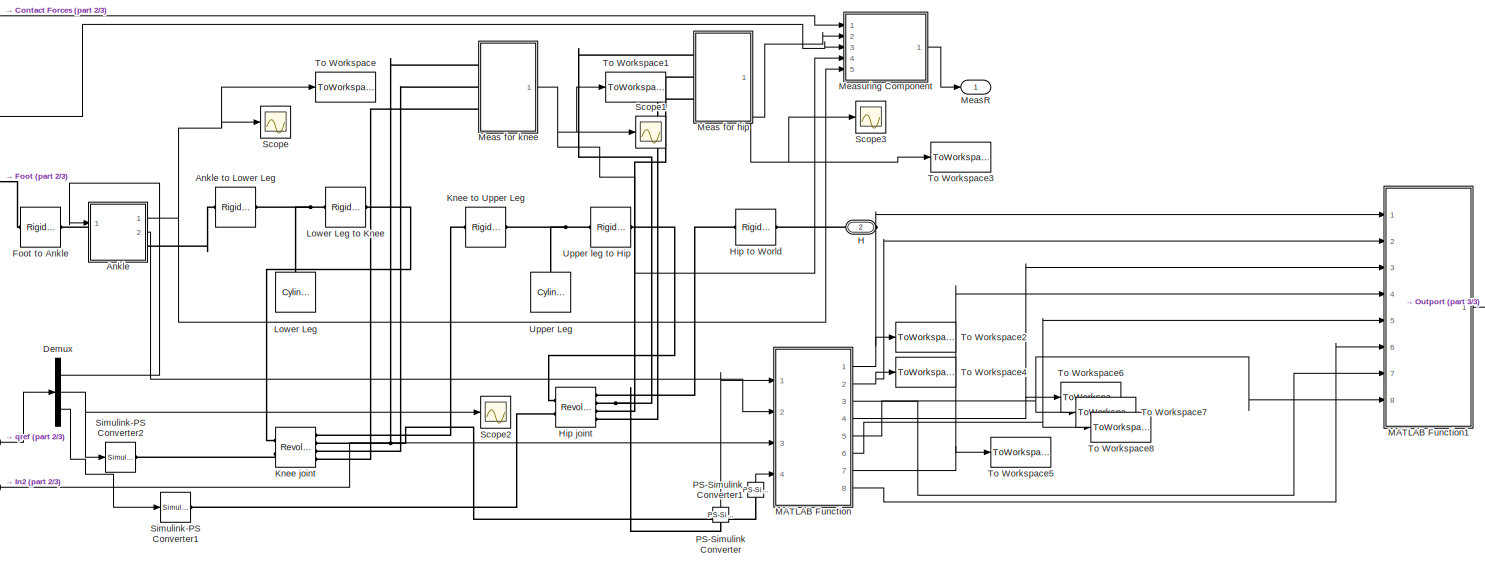
[diagram: Model/Right Leg Back - part 1/3, most of the canvas]
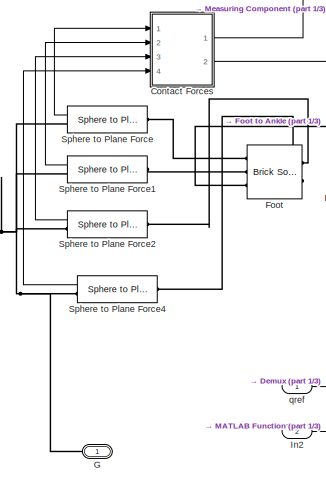
[diagram: Model/Right Leg Back - part 2/3, left side, full height]
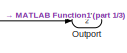
[diagram: Model/Right Leg Back - part 3/3, middle right region]
BLOCK [SubSystem] Model/Right Leg Back
  PortSchema = {"entries":[{"content":{"sides":[{"content":{"connectorIds":["In1"]},"type":"ConnectorPlacement.EquallySpacedRectSide","uuid":"22ee734e-d516-4767-9dd7-a84a6d7499a1"},{"content":{"connectorIds":["Out1","In2","Out2","RConn1","RConn2"],"side":"RIGHT"},"type":"ConnectorPlacement.EquallySpacedRectSide","uuid":"10c942f7-94ea-46a3-ba7f-65e81ae36ff4"},{"content":{"connectorIds":[],"side":"TOP"},"type":"Co...<+271ch>
  Ports = [2, 2, 0, 0, 0, 0, 2]
  RequestExecContextInheritance = off
BLOCK [SubSystem] Model/Right Leg Back/Ankle 
  Ports = [1, 2, 0, 0, 0, 1, 1]
  RequestExecContextInheritance = off
BLOCK [Reference] Model/Right Leg Back/Ankle /Ankle  REF=sm_lib/Joints/Revolute Joint
  Ports = [0, 0, 0, 0, 0, 2, 3]
  SourceBlock = sm_lib/Joints/Revolute Joint
  SourceProductBaseCode = MS
  SourceType = Revolute Joint
BLOCK [PMIOPort] Model/Right Leg Back/Ankle /B
  Side = Left
BLOCK [BusCreator] Model/Right Leg Back/Ankle /Bus Creator
  DisplayOption = bar
  InheritFromInputs = on
  Inputs = 3
  Ports = [3, 1]
BLOCK [PMIOPort] Model/Right Leg Back/Ankle /F
  Port = 2
  Side = Right
BLOCK [Outport] Model/Right Leg Back/Ankle /Outport
  Port = 2
BLOCK [Reference] Model/Right Leg Back/Ankle /PID Controller  REF=pid_lib/PID Controller
  Ports = [1, 1]
  SourceBlock = pid_lib/PID Controller
  SourceProductBaseCode = SL
  SourceType = PID 1dof
BLOCK [Reference] Model/Right Leg Back/Ankle /PS-Simulink Converter  REF=nesl_utility/PS-Simulink
Converter
  NameLocation = top
  Ports = [0, 1, 0, 0, 0, 1]
  SourceBlock = nesl_utility/PS-Simulink\nConverter
  SourceProductBaseCode = PW,SS
  SourceType = PS-Simulink\nConverter
BLOCK [Reference] Model/Right Leg Back/Ankle /PS-Simulink Converter1  REF=nesl_utility/PS-Simulink
Converter
  Ports = [0, 1, 0, 0, 0, 1]
  SourceBlock = nesl_utility/PS-Simulink\nConverter
  SourceProductBaseCode = PW,SS
  SourceType = PS-Simulink\nConverter
BLOCK [Reference] Model/Right Leg Back/Ankle /PS-Simulink Converter2  REF=nesl_utility/PS-Simulink
Converter
  Ports = [0, 1, 0, 0, 0, 1]
  SourceBlock = nesl_utility/PS-Simulink\nConverter
  SourceProductBaseCode = PW,SS
  SourceType = PS-Simulink\nConverter
BLOCK [Reference] Model/Right Leg Back/Ankle /Simulink-PS Converter  REF=nesl_utility/Simulink-PS
Converter
  Ports = [1, 0, 0, 0, 0, 0, 1]
  SourceBlock = nesl_utility/Simulink-PS\nConverter
  SourceProductBaseCode = PW,SS
  SourceType = Simulink-PS\nConverter
BLOCK [Sum] Model/Right Leg Back/Ankle /Sum
  Inputs = |+-
  Ports = [2, 1]
BLOCK [Outport] Model/Right Leg Back/Ankle /meas
  VectorParamsAs1DForOutWhenUnconnected = off
BLOCK [Inport] Model/Right Leg Back/Ankle /qref
BLOCK [Reference] Model/Right Leg Back/Ankle to Lower Leg  REF=sm_lib/Frames and
Transforms/Rigid
Transform
  Ports = [0, 0, 0, 0, 0, 1, 1]
  SourceBlock = sm_lib/Frames and\nTransforms/Rigid\nTransform
  SourceProductBaseCode = MS
  SourceType = Rigid\nTransform
BLOCK [SubSystem] Model/Right Leg Back/Contact Forces 
  Ports = [4, 2]
  RequestExecContextInheritance = off
BLOCK [Sum] Model/Right Leg Back/Contact Forces /Add
  IconShape = rectangular
  Inputs = ++++
  Ports = [4, 1]
BLOCK [Sum] Model/Right Leg Back/Contact Forces /Add1
  IconShape = rectangular
  Inputs = ++++
  Ports = [4, 1]
BLOCK [BusSelector] Model/Right Leg Back/Contact Forces /Bus Selector
  OutputSignals = Normal Force,Friction Force
  Ports = [1, 2]
BLOCK [BusSelector] Model/Right Leg Back/Contact Forces /Bus Selector1
  OutputSignals = Normal Force,Friction Force
  Ports = [1, 2]
BLOCK [BusSelector] Model/Right Leg Back/Contact Forces /Bus Selector2
  OutputSignals = Normal Force,Friction Force
  Ports = [1, 2]
BLOCK [BusSelector] Model/Right Leg Back/Contact Forces /Bus Selector3
  OutputSignals = Normal Force,Friction Force
  Ports = [1, 2]
BLOCK [Inport] Model/Right Leg Back/Contact Forces /In1
BLOCK [Inport] Model/Right Leg Back/Contact Forces /In2
  Port = 2
BLOCK [Inport] Model/Right Leg Back/Contact Forces /In3
  Port = 3
BLOCK [Inport] Model/Right Leg Back/Contact Forces /In4
  Port = 4
BLOCK [Math] Model/Right Leg Back/Contact Forces /Math Function
  Operator = square
  Ports = [1, 1]
  SignedPower = on
BLOCK [Outport] Model/Right Leg Back/Contact Forces /Out1
  VectorParamsAs1DForOutWhenUnconnected = off
BLOCK [Outport] Model/Right Leg Back/Contact Forces /Out2
  Port = 2
  VectorParamsAs1DForOutWhenUnconnected = off
BLOCK [Sqrt] Model/Right Leg Back/Contact Forces /Sqrt
BLOCK [Sum] Model/Right Leg Back/Contact Forces /Sum of Elements
  IconShape = rectangular
  Inputs = +
  Ports = [1, 1]
BLOCK [Demux] Model/Right Leg Back/Demux
  Outputs = 3
  Ports = [1, 3]
BLOCK [Reference] Model/Right Leg Back/Foot  REF=sm_lib/Body Elements/Brick Solid
  Ports = [0, 0, 0, 0, 0, 3, 2]
  SourceBlock = sm_lib/Body Elements/Brick Solid
  SourceProductBaseCode = MS
  SourceType = Brick Solid
BLOCK [Reference] Model/Right Leg Back/Foot to Ankle  REF=sm_lib/Frames and
Transforms/Rigid
Transform
  Ports = [0, 0, 0, 0, 0, 1, 1]
  SourceBlock = sm_lib/Frames and\nTransforms/Rigid\nTransform
  SourceProductBaseCode = MS
  SourceType = Rigid\nTransform
BLOCK [PMIOPort] Model/Right Leg Back/G 
  Side = Right
BLOCK [PMIOPort] Model/Right Leg Back/H
  Port = 2
  Side = Right
BLOCK [Reference] Model/Right Leg Back/Hip joint  REF=sm_lib/Joints/Revolute Joint
  Ports = [0, 0, 0, 0, 0, 2, 4]
  SourceBlock = sm_lib/Joints/Revolute Joint
  SourceProductBaseCode = MS
  SourceType = Revolute Joint
BLOCK [Reference] Model/Right Leg Back/Hip to World  REF=sm_lib/Frames and
Transforms/Rigid
Transform
  Ports = [0, 0, 0, 0, 0, 1, 1]
  SourceBlock = sm_lib/Frames and\nTransforms/Rigid\nTransform
  SourceProductBaseCode = MS
  SourceType = Rigid\nTransform
BLOCK [Inport] Model/Right Leg Back/In2
  Port = 2
BLOCK [Reference] Model/Right Leg Back/Knee joint  REF=sm_lib/Joints/Revolute Joint
  Ports = [0, 0, 0, 0, 0, 2, 4]
  SourceBlock = sm_lib/Joints/Revolute Joint
  SourceProductBaseCode = MS
  SourceType = Revolute Joint
BLOCK [Reference] Model/Right Leg Back/Knee to Upper Leg  REF=sm_lib/Frames and
Transforms/Rigid
Transform
  Ports = [0, 0, 0, 0, 0, 1, 1]
  SourceBlock = sm_lib/Frames and\nTransforms/Rigid\nTransform
  SourceProductBaseCode = MS
  SourceType = Rigid\nTransform
BLOCK [Reference] Model/Right Leg Back/Lower Leg  REF=sm_lib/Body Elements/Cylindrical Solid
  NameLocation = right
  Ports = [0, 0, 0, 0, 0, 0, 1]
  SourceBlock = sm_lib/Body Elements/Cylindrical Solid
  SourceProductBaseCode = MS
  SourceType = Cylindrical Solid
BLOCK [Reference] Model/Right Leg Back/Lower Leg to Knee  REF=sm_lib/Frames and
Transforms/Rigid
Transform
  Ports = [0, 0, 0, 0, 0, 1, 1]
  SourceBlock = sm_lib/Frames and\nTransforms/Rigid\nTransform
  SourceProductBaseCode = MS
  SourceType = Rigid\nTransform
BLOCK [SubSystem] Model/Right Leg Back/MATLAB Function
  ErrorFcn = Stateflow.Translate.translate
  PermitHierarchicalResolution = ExplicitOnly
  Ports = [4, 8]
  RequestExecContextInheritance = off
  SFBlockType = MATLAB Function
  TreatAsAtomicUnit = on
BLOCK [Demux] Model/Right Leg Back/MATLAB Function/ Demux 
  Outputs = 1
  Ports = [1, 1]
BLOCK [S-Function] Model/Right Leg Back/MATLAB Function/ SFunction 
  EnableBusSupport = on
  FunctionName = sf_sfun
  PortCounts = [4 9]
  Ports = [4, 9]
  SFcnIsStateOwnerBlock = off
  SFunctionDeploymentMode = off
  Tag = Stateflow S-Function 7
BLOCK [Terminator] Model/Right Leg Back/MATLAB Function/ Terminator 
BLOCK [Inport] Model/Right Leg Back/MATLAB Function/Qquat
  Port = 3
BLOCK [Outport] Model/Right Leg Back/MATLAB Function/ac1g
  Port = 4
BLOCK [Outport] Model/Right Leg Back/MATLAB Function/ac2g
  Port = 5
BLOCK [Outport] Model/Right Leg Back/MATLAB Function/cmc1g
  Port = 6
BLOCK [Outport] Model/Right Leg Back/MATLAB Function/cmc2g
  Port = 7
BLOCK [Outport] Model/Right Leg Back/MATLAB Function/cmc3g
  Port = 8
BLOCK [Outport] Model/Right Leg Back/MATLAB Function/ec1g
BLOCK [Outport] Model/Right Leg Back/MATLAB Function/ec2g
  Port = 2
BLOCK [Outport] Model/Right Leg Back/MATLAB Function/ec3g
  Port = 3
BLOCK [Inport] Model/Right Leg Back/MATLAB Function/qac
  Port = 2
BLOCK [Inport] Model/Right Leg Back/MATLAB Function/qhc
BLOCK [Inport] Model/Right Leg Back/MATLAB Function/qkc
  Port = 4
BLOCK [SubSystem] Model/Right Leg Back/MATLAB Function1
  ErrorFcn = Stateflow.Translate.translate
  PermitHierarchicalResolution = ExplicitOnly
  Ports = [8, 1]
  RequestExecContextInheritance = off
  SFBlockType = MATLAB Function
  TreatAsAtomicUnit = on
BLOCK [Demux] Model/Right Leg Back/MATLAB Function1/ Demux 
  Outputs = 1
  Ports = [1, 1]
BLOCK [S-Function] Model/Right Leg Back/MATLAB Function1/ SFunction 
  EnableBusSupport = on
  FunctionName = sf_sfun
  PortCounts = [8 2]
  Ports = [8, 2]
  SFcnIsStateOwnerBlock = off
  SFunctionDeploymentMode = off
  Tag = Stateflow S-Function 12
BLOCK [Terminator] Model/Right Leg Back/MATLAB Function1/ Terminator 
BLOCK [Inport] Model/Right Leg Back/MATLAB Function1/ac10g
  Port = 3
BLOCK [Inport] Model/Right Leg Back/MATLAB Function1/ac20g
  Port = 8
BLOCK [Inport] Model/Right Leg Back/MATLAB Function1/cmc1
  Port = 5
BLOCK [Inport] Model/Right Leg Back/MATLAB Function1/cmc2
  Port = 4
BLOCK [Inport] Model/Right Leg Back/MATLAB Function1/cmc3
  Port = 6
BLOCK [Inport] Model/Right Leg Back/MATLAB Function1/ec10g
BLOCK [Inport] Model/Right Leg Back/MATLAB Function1/ec20g
  Port = 2
BLOCK [Inport] Model/Right Leg Back/MATLAB Function1/ec30g
  Port = 7
BLOCK [Outport] Model/Right Leg Back/MATLAB Function1/hRB
BLOCK [SubSystem] Model/Right Leg Back/Meas for hip 
  Ports = [0, 1, 0, 0, 0, 3]
  RequestExecContextInheritance = off
BLOCK [BusCreator] Model/Right Leg Back/Meas for hip /Bus Creator
  DisplayOption = bar
  InheritFromInputs = on
  Inputs = 3
  Ports = [3, 1]
BLOCK [Reference] Model/Right Leg Back/Meas for hip /PS-Simulink Converter1  REF=nesl_utility/PS-Simulink
Converter
  Ports = [0, 1, 0, 0, 0, 1]
  SourceBlock = nesl_utility/PS-Simulink\nConverter
  SourceProductBaseCode = PW,SS
  SourceType = PS-Simulink\nConverter
BLOCK [Reference] Model/Right Leg Back/Meas for hip /PS-Simulink Converter2  REF=nesl_utility/PS-Simulink
Converter
  Ports = [0, 1, 0, 0, 0, 1]
  SourceBlock = nesl_utility/PS-Simulink\nConverter
  SourceProductBaseCode = PW,SS
  SourceType = PS-Simulink\nConverter
BLOCK [Reference] Model/Right Leg Back/Meas for hip /PS-Simulink Converter3  REF=nesl_utility/PS-Simulink
Converter
  Ports = [0, 1, 0, 0, 0, 1]
  SourceBlock = nesl_utility/PS-Simulink\nConverter
  SourceProductBaseCode = PW,SS
  SourceType = PS-Simulink\nConverter
BLOCK [Outport] Model/Right Leg Back/Meas for hip /meas
  VectorParamsAs1DForOutWhenUnconnected = off
BLOCK [PMIOPort] Model/Right Leg Back/Meas for hip /q
  Side = Left
BLOCK [PMIOPort] Model/Right Leg Back/Meas for hip /t
  Port = 3
  Side = Left
BLOCK [PMIOPort] Model/Right Leg Back/Meas for hip /w
  Port = 2
  Side = Left
BLOCK [SubSystem] Model/Right Leg Back/Meas for knee 
  Ports = [0, 1, 0, 0, 0, 3]
  RequestExecContextInheritance = off
BLOCK [BusCreator] Model/Right Leg Back/Meas for knee /Bus Creator
  DisplayOption = bar
  InheritFromInputs = on
  Inputs = 3
  Ports = [3, 1]
BLOCK [Reference] Model/Right Leg Back/Meas for knee /PS-Simulink Converter1  REF=nesl_utility/PS-Simulink
Converter
  Ports = [0, 1, 0, 0, 0, 1]
  SourceBlock = nesl_utility/PS-Simulink\nConverter
  SourceProductBaseCode = PW,SS
  SourceType = PS-Simulink\nConverter
BLOCK [Reference] Model/Right Leg Back/Meas for knee /PS-Simulink Converter2  REF=nesl_utility/PS-Simulink
Converter
  Ports = [0, 1, 0, 0, 0, 1]
  SourceBlock = nesl_utility/PS-Simulink\nConverter
  SourceProductBaseCode = PW,SS
  SourceType = PS-Simulink\nConverter
BLOCK [Reference] Model/Right Leg Back/Meas for knee /PS-Simulink Converter3  REF=nesl_utility/PS-Simulink
Converter
  Ports = [0, 1, 0, 0, 0, 1]
  SourceBlock = nesl_utility/PS-Simulink\nConverter
  SourceProductBaseCode = PW,SS
  SourceType = PS-Simulink\nConverter
BLOCK [Outport] Model/Right Leg Back/Meas for knee /meas
  VectorParamsAs1DForOutWhenUnconnected = off
BLOCK [PMIOPort] Model/Right Leg Back/Meas for knee /q
  Side = Left
BLOCK [PMIOPort] Model/Right Leg Back/Meas for knee /t
  Port = 3
  Side = Left
BLOCK [PMIOPort] Model/Right Leg Back/Meas for knee /w
  Port = 2
  Side = Left
BLOCK [Outport] Model/Right Leg Back/MeasR
  VectorParamsAs1DForOutWhenUnconnected = off
BLOCK [SubSystem] Model/Right Leg Back/Measuring Component
  Ports = [5, 1]
  RequestExecContextInheritance = off
BLOCK [Inport] Model/Right Leg Back/Measuring Component/Ankle
  Port = 5
BLOCK [BusCreator] Model/Right Leg Back/Measuring Component/Bus Creator
  DisplayOption = bar
  InheritFromInputs = on
  Inputs = 7
  Ports = [7, 1]
BLOCK [BusSelector] Model/Right Leg Back/Measuring Component/Bus Selector
  OutputSignals = velocity knee,torque knee
  Ports = [1, 2]
BLOCK [BusSelector] Model/Right Leg Back/Measuring Component/Bus Selector1
  OutputSignals = velocity,torque
  Ports = [1, 2]
BLOCK [Inport] Model/Right Leg Back/Measuring Component/Fn
BLOCK [Inport] Model/Right Leg Back/Measuring Component/Fr
  Port = 3
BLOCK [Inport] Model/Right Leg Back/Measuring Component/Hip
  Port = 2
BLOCK [Inport] Model/Right Leg Back/Measuring Component/Knee
  Port = 4
BLOCK [Outport] Model/Right Leg Back/Measuring Component/Meas
  VectorParamsAs1DForOutWhenUnconnected = off
BLOCK [Outport] Model/Right Leg Back/Outport
  Port = 2
BLOCK [Reference] Model/Right Leg Back/PS-Simulink Converter  REF=nesl_utility/PS-Simulink
Converter
  NameLocation = right
  Ports = [0, 1, 0, 0, 0, 1]
  SourceBlock = nesl_utility/PS-Simulink\nConverter
  SourceProductBaseCode = PW,SS
  SourceType = PS-Simulink\nConverter
BLOCK [Reference] Model/Right Leg Back/PS-Simulink Converter1  REF=nesl_utility/PS-Simulink
Converter
  NameLocation = right
  Ports = [0, 1, 0, 0, 0, 1]
  SourceBlock = nesl_utility/PS-Simulink\nConverter
  SourceProductBaseCode = PW,SS
  SourceType = PS-Simulink\nConverter
BLOCK [Scope] Model/Right Leg Back/Scope
  Floating = off
  NumInputPorts = 1
  Ports = [1]
  ScopeSpecificationString = Simulink.scopes.TimeScopeBlockCfg('CurrentConfiguration', extmgr.ConfigurationSet(extmgr.Configuration('Core','General UI',true),extmgr.Configuration('Core','Source UI',true),extmgr.Configuration('Sources','WiredSimulink',true),extmgr.Configuration('Visuals','Time Domain',true,'SerializedDisplays',{struct('MinYLimReal','-4.59525','MaxYLimReal','5.86763','YLabelReal','','MinYLimMag','0.00000','MaxY...<+1774ch>
BLOCK [Scope] Model/Right Leg Back/Scope1
  Floating = off
  NumInputPorts = 1
  Ports = [1]
  ScopeSpecificationString = Simulink.scopes.TimeScopeBlockCfg('CurrentConfiguration', extmgr.ConfigurationSet(extmgr.Configuration('Core','General UI',true),extmgr.Configuration('Core','Source UI',true),extmgr.Configuration('Sources','WiredSimulink',true,'DataLoggingVariableName','ScopeData1'),extmgr.Configuration('Visuals','Time Domain',true,'SerializedDisplays',{struct('MinYLimReal','-4.59525','MaxYLimReal','5.86763','YLab...<+1855ch>
BLOCK [Scope] Model/Right Leg Back/Scope2
  Floating = off
  NumInputPorts = 1
  Ports = [1]
  ScopeSpecificationString = Simulink.scopes.TimeScopeBlockCfg('CurrentConfiguration', extmgr.ConfigurationSet(extmgr.Configuration('Core','General UI',true),extmgr.Configuration('Core','Source UI',true),extmgr.Configuration('Sources','WiredSimulink',true,'DataLoggingVariableName','ScopeData2'),extmgr.Configuration('Visuals','Time Domain',true,'SerializedDisplays',{struct('MinYLimReal','-4.59525','MaxYLimReal','5.86763','YLab...<+1530ch>
BLOCK [Scope] Model/Right Leg Back/Scope3
  Floating = off
  NumInputPorts = 1
  Ports = [1]
  ScopeSpecificationString = Simulink.scopes.TimeScopeBlockCfg('CurrentConfiguration', extmgr.ConfigurationSet(extmgr.Configuration('Core','General UI',true),extmgr.Configuration('Core','Source UI',true),extmgr.Configuration('Sources','WiredSimulink',true,'DataLoggingVariableName','ScopeData3'),extmgr.Configuration('Visuals','Time Domain',true,'SerializedDisplays',{struct('MinYLimReal','-4.59525','MaxYLimReal','5.86763','YLab...<+1816ch>
BLOCK [Reference] Model/Right Leg Back/Simulink-PS Converter1  REF=nesl_utility/Simulink-PS
Converter
  Ports = [1, 0, 0, 0, 0, 0, 1]
  SourceBlock = nesl_utility/Simulink-PS\nConverter
  SourceProductBaseCode = PW,SS
  SourceType = Simulink-PS\nConverter
BLOCK [Reference] Model/Right Leg Back/Simulink-PS Converter2  REF=nesl_utility/Simulink-PS
Converter
  Ports = [1, 0, 0, 0, 0, 0, 1]
  SourceBlock = nesl_utility/Simulink-PS\nConverter
  SourceProductBaseCode = PW,SS
  SourceType = Simulink-PS\nConverter
BLOCK [Reference] Model/Right Leg Back/Sphere to Plane Force  REF=Contact_Forces_Lib/3D/Sphere to Plane Force
  Ports = [0, 1, 0, 0, 0, 1, 1]
  SourceBlock = Contact_Forces_Lib/3D/Sphere to Plane Force
  SourceProductName = Simscape Multibody Contact Forces Library
  SourceType = Sphere to Plane Force
BLOCK [Reference] Model/Right Leg Back/Sphere to Plane Force1  REF=Contact_Forces_Lib/3D/Sphere to Plane Force
  Ports = [0, 1, 0, 0, 0, 1, 1]
  SourceBlock = Contact_Forces_Lib/3D/Sphere to Plane Force
  SourceProductName = Simscape Multibody Contact Forces Library
  SourceType = Sphere to Plane Force
BLOCK [Reference] Model/Right Leg Back/Sphere to Plane Force2  REF=Contact_Forces_Lib/3D/Sphere to Plane Force
  Ports = [0, 1, 0, 0, 0, 1, 1]
  SourceBlock = Contact_Forces_Lib/3D/Sphere to Plane Force
  SourceProductName = Simscape Multibody Contact Forces Library
  SourceType = Sphere to Plane Force
BLOCK [Reference] Model/Right Leg Back/Sphere to Plane Force4  REF=Contact_Forces_Lib/3D/Sphere to Plane Force
  Ports = [0, 1, 0, 0, 0, 1, 1]
  SourceBlock = Contact_Forces_Lib/3D/Sphere to Plane Force
  SourceProductName = Simscape Multibody Contact Forces Library
  SourceType = Sphere to Plane Force
BLOCK [ToWorkspace] Model/Right Leg Back/To Workspace
  FixptAsFi = on
  MaxDataPoints = inf
  Ports = [1]
  SampleTime = -1
  SaveFormat = Timeseries
  VariableName = RBAnkle_measures
BLOCK [ToWorkspace] Model/Right Leg Back/To Workspace1
  FixptAsFi = on
  MaxDataPoints = inf
  Ports = [1]
  SampleTime = -1
  SaveFormat = Timeseries
  VariableName = RBKnee_measures
BLOCK [ToWorkspace] Model/Right Leg Back/To Workspace2
  FixptAsFi = on
  MaxDataPoints = inf
  Ports = [1]
  SampleTime = -1
  SaveFormat = Timeseries
  VariableName = ec10g
BLOCK [ToWorkspace] Model/Right Leg Back/To Workspace3
  FixptAsFi = on
  MaxDataPoints = inf
  Ports = [1]
  SampleTime = -1
  SaveFormat = Timeseries
  VariableName = RBHip_measures
BLOCK [ToWorkspace] Model/Right Leg Back/To Workspace4
  FixptAsFi = on
  MaxDataPoints = inf
  Ports = [1]
  SampleTime = -1
  SaveFormat = Timeseries
  VariableName = ec20g
BLOCK [ToWorkspace] Model/Right Leg Back/To Workspace5
  FixptAsFi = on
  MaxDataPoints = inf
  Ports = [1]
  SampleTime = -1
  SaveFormat = Timeseries
  VariableName = cmc2
BLOCK [ToWorkspace] Model/Right Leg Back/To Workspace6
  FixptAsFi = on
  MaxDataPoints = inf
  Ports = [1]
  SampleTime = -1
  SaveFormat = Timeseries
  VariableName = ac10g
BLOCK [ToWorkspace] Model/Right Leg Back/To Workspace7
  FixptAsFi = on
  MaxDataPoints = inf
  Ports = [1]
  SampleTime = -1
  SaveFormat = Timeseries
  VariableName = ac20g
BLOCK [ToWorkspace] Model/Right Leg Back/To Workspace8
  FixptAsFi = on
  MaxDataPoints = inf
  Ports = [1]
  SampleTime = -1
  SaveFormat = Timeseries
  VariableName = cmc1
BLOCK [Reference] Model/Right Leg Back/Upper Leg  REF=sm_lib/Body Elements/Cylindrical Solid
  NameLocation = right
  Ports = [0, 0, 0, 0, 0, 0, 1]
  SourceBlock = sm_lib/Body Elements/Cylindrical Solid
  SourceProductBaseCode = MS
  SourceType = Cylindrical Solid
BLOCK [Reference] Model/Right Leg Back/Upper leg to Hip  REF=sm_lib/Frames and
Transforms/Rigid
Transform
  Ports = [0, 0, 0, 0, 0, 1, 1]
  SourceBlock = sm_lib/Frames and\nTransforms/Rigid\nTransform
  SourceProductBaseCode = MS
  SourceType = Rigid\nTransform
BLOCK [Inport] Model/Right Leg Back/qref
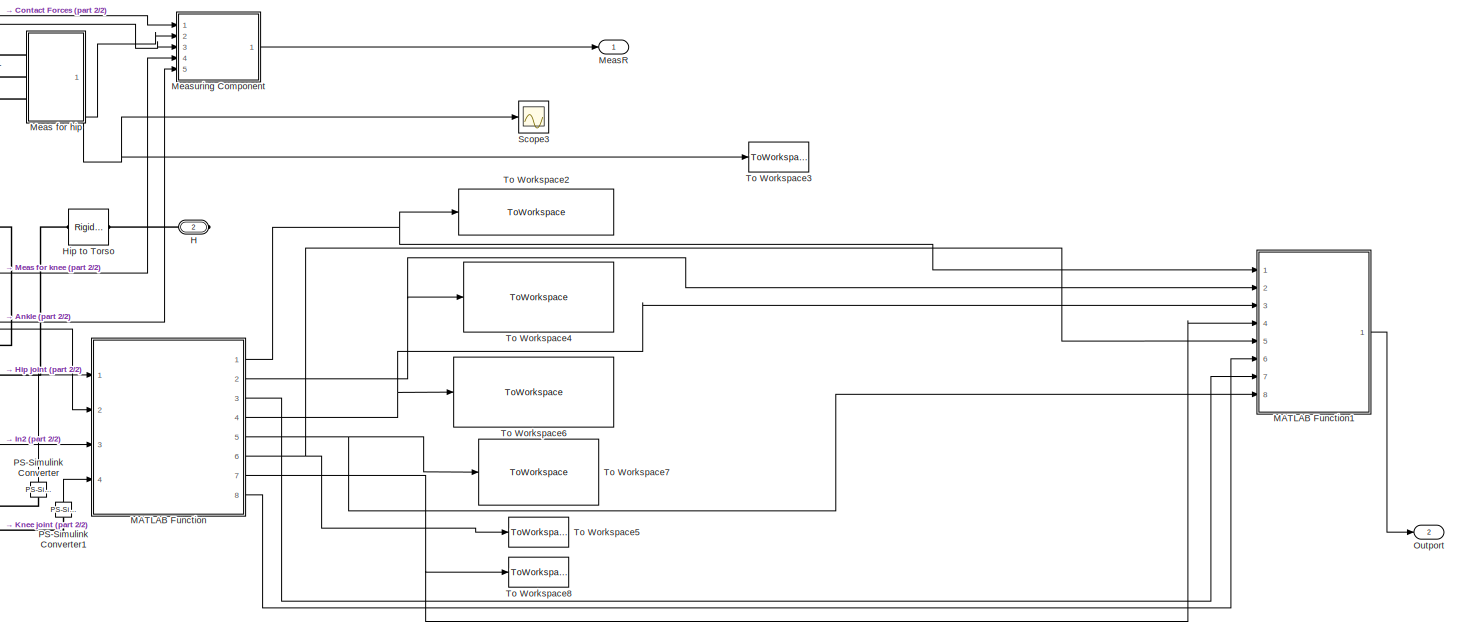
[diagram: Model/Right Leg Front  - part 1/2, right side, full height]
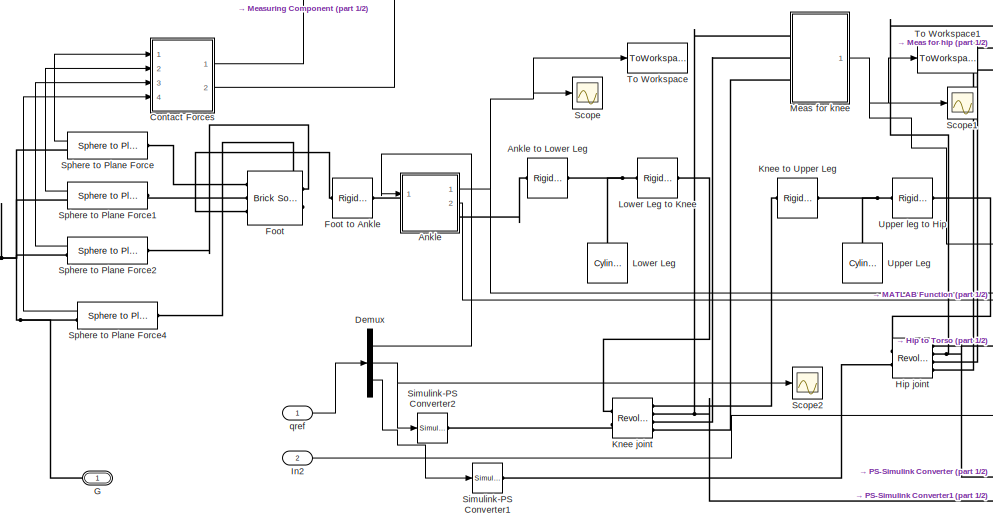
[diagram: Model/Right Leg Front  - part 2/2, left side, full height]
BLOCK [SubSystem] Model/Right Leg Front 
  PortSchema = {"entries":[{"content":{"sides":[{"content":{"connectorIds":["In1"]},"type":"ConnectorPlacement.EquallySpacedRectSide","uuid":"22ee734e-d516-4767-9dd7-a84a6d7499a1"},{"content":{"connectorIds":["Out1","Out2","In2","RConn1","RConn2"],"side":"RIGHT"},"type":"ConnectorPlacement.EquallySpacedRectSide","uuid":"10c942f7-94ea-46a3-ba7f-65e81ae36ff4"},{"content":{"connectorIds":[],"side":"TOP"},"type":"Co...<+271ch>
  Ports = [2, 2, 0, 0, 0, 0, 2]
  RequestExecContextInheritance = off
BLOCK [SubSystem] Model/Right Leg Front /Ankle 
  Ports = [1, 2, 0, 0, 0, 1, 1]
  RequestExecContextInheritance = off
BLOCK [Reference] Model/Right Leg Front /Ankle /Ankle  REF=sm_lib/Joints/Revolute Joint
  Ports = [0, 0, 0, 0, 0, 2, 3]
  SourceBlock = sm_lib/Joints/Revolute Joint
  SourceProductBaseCode = MS
  SourceType = Revolute Joint
BLOCK [PMIOPort] Model/Right Leg Front /Ankle /B
  Side = Left
BLOCK [BusCreator] Model/Right Leg Front /Ankle /Bus Creator
  DisplayOption = bar
  InheritFromInputs = on
  Inputs = 3
  Ports = [3, 1]
BLOCK [PMIOPort] Model/Right Leg Front /Ankle /F
  Port = 2
  Side = Right
BLOCK [Outport] Model/Right Leg Front /Ankle /Outport
  Port = 2
BLOCK [Reference] Model/Right Leg Front /Ankle /PID Controller  REF=pid_lib/PID Controller
  Ports = [1, 1]
  SourceBlock = pid_lib/PID Controller
  SourceProductBaseCode = SL
  SourceType = PID 1dof
BLOCK [Reference] Model/Right Leg Front /Ankle /PS-Simulink Converter  REF=nesl_utility/PS-Simulink
Converter
  NameLocation = top
  Ports = [0, 1, 0, 0, 0, 1]
  SourceBlock = nesl_utility/PS-Simulink\nConverter
  SourceProductBaseCode = PW,SS
  SourceType = PS-Simulink\nConverter
BLOCK [Reference] Model/Right Leg Front /Ankle /PS-Simulink Converter1  REF=nesl_utility/PS-Simulink
Converter
  Ports = [0, 1, 0, 0, 0, 1]
  SourceBlock = nesl_utility/PS-Simulink\nConverter
  SourceProductBaseCode = PW,SS
  SourceType = PS-Simulink\nConverter
BLOCK [Reference] Model/Right Leg Front /Ankle /PS-Simulink Converter2  REF=nesl_utility/PS-Simulink
Converter
  Ports = [0, 1, 0, 0, 0, 1]
  SourceBlock = nesl_utility/PS-Simulink\nConverter
  SourceProductBaseCode = PW,SS
  SourceType = PS-Simulink\nConverter
BLOCK [Reference] Model/Right Leg Front /Ankle /Simulink-PS Converter  REF=nesl_utility/Simulink-PS
Converter
  Ports = [1, 0, 0, 0, 0, 0, 1]
  SourceBlock = nesl_utility/Simulink-PS\nConverter
  SourceProductBaseCode = PW,SS
  SourceType = Simulink-PS\nConverter
BLOCK [Sum] Model/Right Leg Front /Ankle /Sum
  Inputs = |+-
  Ports = [2, 1]
BLOCK [Outport] Model/Right Leg Front /Ankle /meas
  VectorParamsAs1DForOutWhenUnconnected = off
BLOCK [Inport] Model/Right Leg Front /Ankle /qref
BLOCK [Reference] Model/Right Leg Front /Ankle to Lower Leg  REF=sm_lib/Frames and
Transforms/Rigid
Transform
  Ports = [0, 0, 0, 0, 0, 1, 1]
  SourceBlock = sm_lib/Frames and\nTransforms/Rigid\nTransform
  SourceProductBaseCode = MS
  SourceType = Rigid\nTransform
BLOCK [SubSystem] Model/Right Leg Front /Contact Forces 
  Ports = [4, 2]
  RequestExecContextInheritance = off
BLOCK [Sum] Model/Right Leg Front /Contact Forces /Add
  IconShape = rectangular
  Inputs = ++++
  Ports = [4, 1]
BLOCK [Sum] Model/Right Leg Front /Contact Forces /Add1
  IconShape = rectangular
  Inputs = ++++
  Ports = [4, 1]
BLOCK [BusSelector] Model/Right Leg Front /Contact Forces /Bus Selector
  OutputSignals = Normal Force,Friction Force
  Ports = [1, 2]
BLOCK [BusSelector] Model/Right Leg Front /Contact Forces /Bus Selector1
  OutputSignals = Normal Force,Friction Force
  Ports = [1, 2]
BLOCK [BusSelector] Model/Right Leg Front /Contact Forces /Bus Selector2
  OutputSignals = Normal Force,Friction Force
  Ports = [1, 2]
BLOCK [BusSelector] Model/Right Leg Front /Contact Forces /Bus Selector3
  OutputSignals = Normal Force,Friction Force
  Ports = [1, 2]
BLOCK [Inport] Model/Right Leg Front /Contact Forces /In1
BLOCK [Inport] Model/Right Leg Front /Contact Forces /In2
  Port = 2
BLOCK [Inport] Model/Right Leg Front /Contact Forces /In3
  Port = 3
BLOCK [Inport] Model/Right Leg Front /Contact Forces /In4
  Port = 4
BLOCK [Math] Model/Right Leg Front /Contact Forces /Math Function
  Operator = square
  Ports = [1, 1]
  SignedPower = on
BLOCK [Outport] Model/Right Leg Front /Contact Forces /Out1
  VectorParamsAs1DForOutWhenUnconnected = off
BLOCK [Outport] Model/Right Leg Front /Contact Forces /Out2
  Port = 2
  VectorParamsAs1DForOutWhenUnconnected = off
BLOCK [Sqrt] Model/Right Leg Front /Contact Forces /Sqrt
BLOCK [Sum] Model/Right Leg Front /Contact Forces /Sum of Elements
  IconShape = rectangular
  Inputs = +
  Ports = [1, 1]
BLOCK [Demux] Model/Right Leg Front /Demux
  Outputs = 3
  Ports = [1, 3]
BLOCK [Reference] Model/Right Leg Front /Foot  REF=sm_lib/Body Elements/Brick Solid
  Ports = [0, 0, 0, 0, 0, 3, 2]
  SourceBlock = sm_lib/Body Elements/Brick Solid
  SourceProductBaseCode = MS
  SourceType = Brick Solid
BLOCK [Reference] Model/Right Leg Front /Foot to Ankle  REF=sm_lib/Frames and
Transforms/Rigid
Transform
  Ports = [0, 0, 0, 0, 0, 1, 1]
  SourceBlock = sm_lib/Frames and\nTransforms/Rigid\nTransform
  SourceProductBaseCode = MS
  SourceType = Rigid\nTransform
BLOCK [PMIOPort] Model/Right Leg Front /G 
  Side = Right
BLOCK [PMIOPort] Model/Right Leg Front /H
  Port = 2
  Side = Right
BLOCK [Reference] Model/Right Leg Front /Hip joint  REF=sm_lib/Joints/Revolute Joint
  Ports = [0, 0, 0, 0, 0, 2, 4]
  SourceBlock = sm_lib/Joints/Revolute Joint
  SourceProductBaseCode = MS
  SourceType = Revolute Joint
BLOCK [Reference] Model/Right Leg Front /Hip to Torso  REF=sm_lib/Frames and
Transforms/Rigid
Transform
  Ports = [0, 0, 0, 0, 0, 1, 1]
  SourceBlock = sm_lib/Frames and\nTransforms/Rigid\nTransform
  SourceProductBaseCode = MS
  SourceType = Rigid\nTransform
BLOCK [Inport] Model/Right Leg Front /In2
  Port = 2
BLOCK [Reference] Model/Right Leg Front /Knee joint  REF=sm_lib/Joints/Revolute Joint
  Ports = [0, 0, 0, 0, 0, 2, 4]
  SourceBlock = sm_lib/Joints/Revolute Joint
  SourceProductBaseCode = MS
  SourceType = Revolute Joint
BLOCK [Reference] Model/Right Leg Front /Knee to Upper Leg  REF=sm_lib/Frames and
Transforms/Rigid
Transform
  Ports = [0, 0, 0, 0, 0, 1, 1]
  SourceBlock = sm_lib/Frames and\nTransforms/Rigid\nTransform
  SourceProductBaseCode = MS
  SourceType = Rigid\nTransform
BLOCK [Reference] Model/Right Leg Front /Lower Leg  REF=sm_lib/Body Elements/Cylindrical Solid
  NameLocation = right
  Ports = [0, 0, 0, 0, 0, 0, 1]
  SourceBlock = sm_lib/Body Elements/Cylindrical Solid
  SourceProductBaseCode = MS
  SourceType = Cylindrical Solid
BLOCK [Reference] Model/Right Leg Front /Lower Leg to Knee  REF=sm_lib/Frames and
Transforms/Rigid
Transform
  Ports = [0, 0, 0, 0, 0, 1, 1]
  SourceBlock = sm_lib/Frames and\nTransforms/Rigid\nTransform
  SourceProductBaseCode = MS
  SourceType = Rigid\nTransform
BLOCK [SubSystem] Model/Right Leg Front /MATLAB Function
  ErrorFcn = Stateflow.Translate.translate
  PermitHierarchicalResolution = ExplicitOnly
  Ports = [4, 8]
  RequestExecContextInheritance = off
  SFBlockType = MATLAB Function
  TreatAsAtomicUnit = on
BLOCK [Demux] Model/Right Leg Front /MATLAB Function/ Demux 
  Outputs = 1
  Ports = [1, 1]
BLOCK [S-Function] Model/Right Leg Front /MATLAB Function/ SFunction 
  EnableBusSupport = on
  FunctionName = sf_sfun
  PortCounts = [4 9]
  Ports = [4, 9]
  SFcnIsStateOwnerBlock = off
  SFunctionDeploymentMode = off
  Tag = Stateflow S-Function 5
BLOCK [Terminator] Model/Right Leg Front /MATLAB Function/ Terminator 
BLOCK [Inport] Model/Right Leg Front /MATLAB Function/Qquat
  Port = 3
BLOCK [Outport] Model/Right Leg Front /MATLAB Function/aa1g
  Port = 4
BLOCK [Outport] Model/Right Leg Front /MATLAB Function/aa2g
  Port = 5
BLOCK [Outport] Model/Right Leg Front /MATLAB Function/cma1g
  Port = 6
BLOCK [Outport] Model/Right Leg Front /MATLAB Function/cma2g
  Port = 7
BLOCK [Outport] Model/Right Leg Front /MATLAB Function/cma3g
  Port = 8
BLOCK [Outport] Model/Right Leg Front /MATLAB Function/ea1g
BLOCK [Outport] Model/Right Leg Front /MATLAB Function/ea2g
  Port = 2
BLOCK [Outport] Model/Right Leg Front /MATLAB Function/ea3g
  Port = 3
BLOCK [Inport] Model/Right Leg Front /MATLAB Function/qaa
  Port = 2
BLOCK [Inport] Model/Right Leg Front /MATLAB Function/qha
BLOCK [Inport] Model/Right Leg Front /MATLAB Function/qka
  Port = 4
BLOCK [SubSystem] Model/Right Leg Front /MATLAB Function1
  ErrorFcn = Stateflow.Translate.translate
  PermitHierarchicalResolution = ExplicitOnly
  Ports = [8, 1]
  RequestExecContextInheritance = off
  SFBlockType = MATLAB Function
  TreatAsAtomicUnit = on
BLOCK [Demux] Model/Right Leg Front /MATLAB Function1/ Demux 
  Outputs = 1
  Ports = [1, 1]
BLOCK [S-Function] Model/Right Leg Front /MATLAB Function1/ SFunction 
  EnableBusSupport = on
  FunctionName = sf_sfun
  PortCounts = [8 2]
  Ports = [8, 2]
  SFcnIsStateOwnerBlock = off
  SFunctionDeploymentMode = off
  Tag = Stateflow S-Function 10
BLOCK [Terminator] Model/Right Leg Front /MATLAB Function1/ Terminator 
BLOCK [Inport] Model/Right Leg Front /MATLAB Function1/aa10g
  Port = 3
BLOCK [Inport] Model/Right Leg Front /MATLAB Function1/aa20g
  Port = 8
BLOCK [Inport] Model/Right Leg Front /MATLAB Function1/cma1
  Port = 5
BLOCK [Inport] Model/Right Leg Front /MATLAB Function1/cma2
  Port = 4
BLOCK [Inport] Model/Right Leg Front /MATLAB Function1/cma3
  Port = 6
BLOCK [Inport] Model/Right Leg Front /MATLAB Function1/ea10g
BLOCK [Inport] Model/Right Leg Front /MATLAB Function1/ea20g
  Port = 2
BLOCK [Inport] Model/Right Leg Front /MATLAB Function1/ea30g
  Port = 7
BLOCK [Outport] Model/Right Leg Front /MATLAB Function1/hRF
BLOCK [SubSystem] Model/Right Leg Front /Meas for hip 
  Ports = [0, 1, 0, 0, 0, 3]
  RequestExecContextInheritance = off
BLOCK [BusCreator] Model/Right Leg Front /Meas for hip /Bus Creator
  DisplayOption = bar
  InheritFromInputs = on
  Inputs = 3
  Ports = [3, 1]
BLOCK [Reference] Model/Right Leg Front /Meas for hip /PS-Simulink Converter1  REF=nesl_utility/PS-Simulink
Converter
  Ports = [0, 1, 0, 0, 0, 1]
  SourceBlock = nesl_utility/PS-Simulink\nConverter
  SourceProductBaseCode = PW,SS
  SourceType = PS-Simulink\nConverter
BLOCK [Reference] Model/Right Leg Front /Meas for hip /PS-Simulink Converter2  REF=nesl_utility/PS-Simulink
Converter
  Ports = [0, 1, 0, 0, 0, 1]
  SourceBlock = nesl_utility/PS-Simulink\nConverter
  SourceProductBaseCode = PW,SS
  SourceType = PS-Simulink\nConverter
BLOCK [Reference] Model/Right Leg Front /Meas for hip /PS-Simulink Converter3  REF=nesl_utility/PS-Simulink
Converter
  Ports = [0, 1, 0, 0, 0, 1]
  SourceBlock = nesl_utility/PS-Simulink\nConverter
  SourceProductBaseCode = PW,SS
  SourceType = PS-Simulink\nConverter
BLOCK [Outport] Model/Right Leg Front /Meas for hip /meas
  VectorParamsAs1DForOutWhenUnconnected = off
BLOCK [PMIOPort] Model/Right Leg Front /Meas for hip /q
  Side = Left
BLOCK [PMIOPort] Model/Right Leg Front /Meas for hip /t
  Port = 3
  Side = Left
BLOCK [PMIOPort] Model/Right Leg Front /Meas for hip /w
  Port = 2
  Side = Left
BLOCK [SubSystem] Model/Right Leg Front /Meas for knee 
  NameLocation = left
  Ports = [0, 1, 0, 0, 0, 3]
  RequestExecContextInheritance = off
BLOCK [BusCreator] Model/Right Leg Front /Meas for knee /Bus Creator
  DisplayOption = bar
  InheritFromInputs = on
  Inputs = 3
  Ports = [3, 1]
BLOCK [Reference] Model/Right Leg Front /Meas for knee /PS-Simulink Converter1  REF=nesl_utility/PS-Simulink
Converter
  Ports = [0, 1, 0, 0, 0, 1]
  SourceBlock = nesl_utility/PS-Simulink\nConverter
  SourceProductBaseCode = PW,SS
  SourceType = PS-Simulink\nConverter
BLOCK [Reference] Model/Right Leg Front /Meas for knee /PS-Simulink Converter2  REF=nesl_utility/PS-Simulink
Converter
  Ports = [0, 1, 0, 0, 0, 1]
  SourceBlock = nesl_utility/PS-Simulink\nConverter
  SourceProductBaseCode = PW,SS
  SourceType = PS-Simulink\nConverter
BLOCK [Reference] Model/Right Leg Front /Meas for knee /PS-Simulink Converter3  REF=nesl_utility/PS-Simulink
Converter
  Ports = [0, 1, 0, 0, 0, 1]
  SourceBlock = nesl_utility/PS-Simulink\nConverter
  SourceProductBaseCode = PW,SS
  SourceType = PS-Simulink\nConverter
BLOCK [Outport] Model/Right Leg Front /Meas for knee /meas
  VectorParamsAs1DForOutWhenUnconnected = off
BLOCK [PMIOPort] Model/Right Leg Front /Meas for knee /q
  Side = Left
BLOCK [PMIOPort] Model/Right Leg Front /Meas for knee /t
  Port = 3
  Side = Left
BLOCK [PMIOPort] Model/Right Leg Front /Meas for knee /w
  Port = 2
  Side = Left
BLOCK [Outport] Model/Right Leg Front /MeasR
  VectorParamsAs1DForOutWhenUnconnected = off
BLOCK [SubSystem] Model/Right Leg Front /Measuring Component
  Ports = [5, 1]
  RequestExecContextInheritance = off
BLOCK [Inport] Model/Right Leg Front /Measuring Component/Ankle
  Port = 5
BLOCK [BusCreator] Model/Right Leg Front /Measuring Component/Bus Creator
  DisplayOption = bar
  InheritFromInputs = on
  Inputs = 7
  Ports = [7, 1]
BLOCK [BusSelector] Model/Right Leg Front /Measuring Component/Bus Selector
  OutputSignals = velocity knee,torque knee
  Ports = [1, 2]
BLOCK [BusSelector] Model/Right Leg Front /Measuring Component/Bus Selector1
  OutputSignals = velocity,torque
  Ports = [1, 2]
BLOCK [Inport] Model/Right Leg Front /Measuring Component/Fn
BLOCK [Inport] Model/Right Leg Front /Measuring Component/Fr
  Port = 3
BLOCK [Inport] Model/Right Leg Front /Measuring Component/Hip
  Port = 2
BLOCK [Inport] Model/Right Leg Front /Measuring Component/Knee
  Port = 4
BLOCK [Outport] Model/Right Leg Front /Measuring Component/Meas
  VectorParamsAs1DForOutWhenUnconnected = off
BLOCK [Outport] Model/Right Leg Front /Outport
  Port = 2
BLOCK [Reference] Model/Right Leg Front /PS-Simulink Converter  REF=nesl_utility/PS-Simulink
Converter
  NameLocation = right
  Ports = [0, 1, 0, 0, 0, 1]
  SourceBlock = nesl_utility/PS-Simulink\nConverter
  SourceProductBaseCode = PW,SS
  SourceType = PS-Simulink\nConverter
BLOCK [Reference] Model/Right Leg Front /PS-Simulink Converter1  REF=nesl_utility/PS-Simulink
Converter
  NameLocation = right
  Ports = [0, 1, 0, 0, 0, 1]
  SourceBlock = nesl_utility/PS-Simulink\nConverter
  SourceProductBaseCode = PW,SS
  SourceType = PS-Simulink\nConverter
BLOCK [Scope] Model/Right Leg Front /Scope
  Floating = off
  NumInputPorts = 1
  Ports = [1]
  ScopeSpecificationString = Simulink.scopes.TimeScopeBlockCfg('CurrentConfiguration', extmgr.ConfigurationSet(extmgr.Configuration('Core','General UI',true),extmgr.Configuration('Core','Source UI',true),extmgr.Configuration('Sources','WiredSimulink',true),extmgr.Configuration('Visuals','Time Domain',true,'SerializedDisplays',{struct('MinYLimReal','-4.59525','MaxYLimReal','5.86763','YLabelReal','','MinYLimMag','0.00000','MaxY...<+1774ch>
BLOCK [Scope] Model/Right Leg Front /Scope1
  Floating = off
  NumInputPorts = 1
  Ports = [1]
  ScopeSpecificationString = Simulink.scopes.TimeScopeBlockCfg('CurrentConfiguration', extmgr.ConfigurationSet(extmgr.Configuration('Core','General UI',true),extmgr.Configuration('Core','Source UI',true),extmgr.Configuration('Sources','WiredSimulink',true,'DataLoggingVariableName','ScopeData1'),extmgr.Configuration('Visuals','Time Domain',true,'SerializedDisplays',{struct('MinYLimReal','-4.59525','MaxYLimReal','5.86763','YLab...<+1855ch>
BLOCK [Scope] Model/Right Leg Front /Scope2
  Floating = off
  NumInputPorts = 1
  Ports = [1]
  ScopeSpecificationString = Simulink.scopes.TimeScopeBlockCfg('CurrentConfiguration', extmgr.ConfigurationSet(extmgr.Configuration('Core','General UI',true),extmgr.Configuration('Core','Source UI',true),extmgr.Configuration('Sources','WiredSimulink',true,'DataLoggingVariableName','ScopeData2'),extmgr.Configuration('Visuals','Time Domain',true,'SerializedDisplays',{struct('MinYLimReal','-4.59525','MaxYLimReal','5.86763','YLab...<+1530ch>
BLOCK [Scope] Model/Right Leg Front /Scope3
  Floating = off
  NumInputPorts = 1
  Ports = [1]
  ScopeSpecificationString = Simulink.scopes.TimeScopeBlockCfg('CurrentConfiguration', extmgr.ConfigurationSet(extmgr.Configuration('Core','General UI',true),extmgr.Configuration('Core','Source UI',true),extmgr.Configuration('Sources','WiredSimulink',true,'DataLoggingVariableName','ScopeData3'),extmgr.Configuration('Visuals','Time Domain',true,'SerializedDisplays',{struct('MinYLimReal','-4.59525','MaxYLimReal','5.86763','YLab...<+1816ch>
BLOCK [Reference] Model/Right Leg Front /Simulink-PS Converter1  REF=nesl_utility/Simulink-PS
Converter
  Ports = [1, 0, 0, 0, 0, 0, 1]
  SourceBlock = nesl_utility/Simulink-PS\nConverter
  SourceProductBaseCode = PW,SS
  SourceType = Simulink-PS\nConverter
BLOCK [Reference] Model/Right Leg Front /Simulink-PS Converter2  REF=nesl_utility/Simulink-PS
Converter
  Ports = [1, 0, 0, 0, 0, 0, 1]
  SourceBlock = nesl_utility/Simulink-PS\nConverter
  SourceProductBaseCode = PW,SS
  SourceType = Simulink-PS\nConverter
BLOCK [Reference] Model/Right Leg Front /Sphere to Plane Force  REF=Contact_Forces_Lib/3D/Sphere to Plane Force
  Ports = [0, 1, 0, 0, 0, 1, 1]
  SourceBlock = Contact_Forces_Lib/3D/Sphere to Plane Force
  SourceProductName = Simscape Multibody Contact Forces Library
  SourceType = Sphere to Plane Force
BLOCK [Reference] Model/Right Leg Front /Sphere to Plane Force1  REF=Contact_Forces_Lib/3D/Sphere to Plane Force
  Ports = [0, 1, 0, 0, 0, 1, 1]
  SourceBlock = Contact_Forces_Lib/3D/Sphere to Plane Force
  SourceProductName = Simscape Multibody Contact Forces Library
  SourceType = Sphere to Plane Force
BLOCK [Reference] Model/Right Leg Front /Sphere to Plane Force2  REF=Contact_Forces_Lib/3D/Sphere to Plane Force
  Ports = [0, 1, 0, 0, 0, 1, 1]
  SourceBlock = Contact_Forces_Lib/3D/Sphere to Plane Force
  SourceProductName = Simscape Multibody Contact Forces Library
  SourceType = Sphere to Plane Force
BLOCK [Reference] Model/Right Leg Front /Sphere to Plane Force4  REF=Contact_Forces_Lib/3D/Sphere to Plane Force
  Ports = [0, 1, 0, 0, 0, 1, 1]
  SourceBlock = Contact_Forces_Lib/3D/Sphere to Plane Force
  SourceProductName = Simscape Multibody Contact Forces Library
  SourceType = Sphere to Plane Force
BLOCK [ToWorkspace] Model/Right Leg Front /To Workspace
  FixptAsFi = on
  MaxDataPoints = inf
  Ports = [1]
  SampleTime = -1
  SaveFormat = Timeseries
  VariableName = RFAnkle_measures
BLOCK [ToWorkspace] Model/Right Leg Front /To Workspace1
  FixptAsFi = on
  MaxDataPoints = inf
  Ports = [1]
  SampleTime = -1
  SaveFormat = Timeseries
  VariableName = RFKnee_measures
BLOCK [ToWorkspace] Model/Right Leg Front /To Workspace2
  FixptAsFi = on
  MaxDataPoints = inf
  Ports = [1]
  SampleTime = -1
  SaveFormat = Timeseries
  VariableName = ea10g
BLOCK [ToWorkspace] Model/Right Leg Front /To Workspace3
  FixptAsFi = on
  MaxDataPoints = inf
  Ports = [1]
  SampleTime = -1
  SaveFormat = Timeseries
  VariableName = RFHip_measures
BLOCK [ToWorkspace] Model/Right Leg Front /To Workspace4
  FixptAsFi = on
  MaxDataPoints = inf
  Ports = [1]
  SampleTime = -1
  SaveFormat = Timeseries
  VariableName = ea20g
BLOCK [ToWorkspace] Model/Right Leg Front /To Workspace5
  FixptAsFi = on
  MaxDataPoints = inf
  Ports = [1]
  SampleTime = -1
  SaveFormat = Timeseries
  VariableName = cma1
BLOCK [ToWorkspace] Model/Right Leg Front /To Workspace6
  FixptAsFi = on
  MaxDataPoints = inf
  Ports = [1]
  SampleTime = -1
  SaveFormat = Timeseries
  VariableName = aa10g
BLOCK [ToWorkspace] Model/Right Leg Front /To Workspace7
  FixptAsFi = on
  MaxDataPoints = inf
  Ports = [1]
  SampleTime = -1
  SaveFormat = Timeseries
  VariableName = aa20g
BLOCK [ToWorkspace] Model/Right Leg Front /To Workspace8
  FixptAsFi = on
  MaxDataPoints = inf
  Ports = [1]
  SampleTime = -1
  SaveFormat = Timeseries
  VariableName = cma2
BLOCK [Reference] Model/Right Leg Front /Upper Leg  REF=sm_lib/Body Elements/Cylindrical Solid
  NameLocation = right
  Ports = [0, 0, 0, 0, 0, 0, 1]
  SourceBlock = sm_lib/Body Elements/Cylindrical Solid
  SourceProductBaseCode = MS
  SourceType = Cylindrical Solid
BLOCK [Reference] Model/Right Leg Front /Upper leg to Hip  REF=sm_lib/Frames and
Transforms/Rigid
Transform
  Ports = [0, 0, 0, 0, 0, 1, 1]
  SourceBlock = sm_lib/Frames and\nTransforms/Rigid\nTransform
  SourceProductBaseCode = MS
  SourceType = Rigid\nTransform
BLOCK [Inport] Model/Right Leg Front /qref
BLOCK [Reference] Model/Right hip back to torso  REF=sm_lib/Frames and
Transforms/Rigid
Transform
  Ports = [0, 0, 0, 0, 0, 1, 1]
  SourceBlock = sm_lib/Frames and\nTransforms/Rigid\nTransform
  SourceProductBaseCode = MS
  SourceType = Rigid\nTransform
BLOCK [Reference] Model/Right hip front to torso  REF=sm_lib/Frames and
Transforms/Rigid
Transform
  Ports = [0, 0, 0, 0, 0, 1, 1]
  SourceBlock = sm_lib/Frames and\nTransforms/Rigid\nTransform
  SourceProductBaseCode = MS
  SourceType = Rigid\nTransform
BLOCK [ToWorkspace] Model/To Workspace
  FixptAsFi = on
  MaxDataPoints = inf
  Ports = [1]
  SampleTime = -1
  SaveFormat = Timeseries
  VariableName = hRF
BLOCK [ToWorkspace] Model/To Workspace1
  FixptAsFi = on
  MaxDataPoints = inf
  Ports = [1]
  SampleTime = -1
  SaveFormat = Timeseries
  VariableName = hLF
BLOCK [ToWorkspace] Model/To Workspace2
  FixptAsFi = on
  MaxDataPoints = inf
  Ports = [1]
  SampleTime = -1
  SaveFormat = Timeseries
  VariableName = hRB
BLOCK [ToWorkspace] Model/To Workspace3
  FixptAsFi = on
  MaxDataPoints = inf
  Ports = [1]
  SampleTime = -1
  SaveFormat = Timeseries
  VariableName = hLB
BLOCK [ToWorkspace] Model/To Workspace4
  FixptAsFi = on
  MaxDataPoints = inf
  Ports = [1]
  SampleTime = -1
  SaveFormat = Timeseries
  VariableName = h
BLOCK [Reference] Model/Torso  REF=sm_lib/Body Elements/Brick Solid
  NameLocation = right
  Ports = [0, 0, 0, 0, 0, 0, 1]
  SourceBlock = sm_lib/Body Elements/Brick Solid
  SourceProductBaseCode = MS
  SourceType = Brick Solid
BLOCK [Outport] Model/measL
  Port = 2
  VectorParamsAs1DForOutWhenUnconnected = off
BLOCK [Outport] Model/measL1
  Port = 4
  VectorParamsAs1DForOutWhenUnconnected = off
BLOCK [Outport] Model/measR
  VectorParamsAs1DForOutWhenUnconnected = off
BLOCK [Outport] Model/measR1
  Port = 3
  VectorParamsAs1DForOutWhenUnconnected = off
BLOCK [Inport] Model/v_torso
BLOCK [Outport] Out1
  VectorParamsAs1DForOutWhenUnconnected = off
BLOCK [Outport] Out2
  Port = 2
  VectorParamsAs1DForOutWhenUnconnected = off
BLOCK [Reference] PS-Simulink Converter  REF=nesl_utility/PS-Simulink
Converter
  Ports = [0, 1, 0, 0, 0, 1]
  SourceBlock = nesl_utility/PS-Simulink\nConverter
  SourceProductBaseCode = PW,SS
  SourceType = PS-Simulink\nConverter
BLOCK [Reference] PS-Simulink Converter1  REF=nesl_utility/PS-Simulink
Converter
  Ports = [0, 1, 0, 0, 0, 1]
  SourceBlock = nesl_utility/PS-Simulink\nConverter
  SourceProductBaseCode = PW,SS
  SourceType = PS-Simulink\nConverter
BLOCK [Reference] PS-Simulink Converter2  REF=nesl_utility/PS-Simulink
Converter
  Ports = [0, 1, 0, 0, 0, 1]
  SourceBlock = nesl_utility/PS-Simulink\nConverter
  SourceProductBaseCode = PW,SS
  SourceType = PS-Simulink\nConverter
BLOCK [Reference] PS-Simulink Converter3  REF=nesl_utility/PS-Simulink
Converter
  Ports = [0, 1, 0, 0, 0, 1]
  SourceBlock = nesl_utility/PS-Simulink\nConverter
  SourceProductBaseCode = PW,SS
  SourceType = PS-Simulink\nConverter
BLOCK [Reference] Solver Configuration  REF=nesl_utility/Solver
Configuration
  Ports = [0, 0, 0, 0, 0, 0, 1]
  SourceBlock = nesl_utility/Solver\nConfiguration
  SourceProductBaseCode = PW,SS
  SourceType = Solver\nConfiguration
BLOCK [ToWorkspace] To Workspace
  FixptAsFi = on
  MaxDataPoints = inf
  Ports = [1]
  SampleTime = -1
  SaveFormat = Timeseries
  VariableName = Qquat
BLOCK [ToWorkspace] To Workspace1
  FixptAsFi = on
  MaxDataPoints = inf
  Ports = [1]
  SampleTime = -1
  SaveFormat = Timeseries
  VariableName = v_torso
BLOCK [Reference] World Frame  REF=sm_lib/Frames and
Transforms/World Frame
  Ports = [0, 0, 0, 0, 0, 0, 1]
  SourceBlock = sm_lib/Frames and\nTransforms/World Frame
  SourceProductBaseCode = MS
  SourceType = World Frame
BLOCK [Reference] World Plane  REF=sm_lib/Body Elements/Brick Solid
  NameLocation = right
  Ports = [0, 0, 0, 0, 0, 0, 1]
  SourceBlock = sm_lib/Body Elements/Brick Solid
  SourceProductBaseCode = MS
  SourceType = Brick Solid
BLOCK [Outport] measL1
  Port = 4
  VectorParamsAs1DForOutWhenUnconnected = off
BLOCK [Outport] measR1
  Port = 3
  VectorParamsAs1DForOutWhenUnconnected = off
BLOCK [Reference] plane offset1  REF=sm_lib/Frames and
Transforms/Rigid
Transform
  Ports = [0, 0, 0, 0, 0, 1, 1]
  SourceBlock = sm_lib/Frames and\nTransforms/Rigid\nTransform
  SourceProductBaseCode = MS
  SourceType = Rigid\nTransform
NET MATLAB Function:1 -> Model:1, To Workspace1:1
LINE Model/Bias1:1 -> Model/MATLAB Function3:1
LINE Model/Bias2:1 -> Model/MATLAB Function2:1
NET Model/Clock:1 -> Model/Bias1:1, Model/Bias2:1, Model/MATLAB Function1:1, Model/MATLAB Function:1
LINE Model/Demux:1 -> Model/Right Leg Front :2
LINE Model/Demux:2 -> Model/Left Leg Front:2
LINE Model/Demux:3 -> Model/Right Leg Back:2
LINE Model/Demux:4 -> Model/Left LegBack:2
LINE Model/Left Leg Front/Ankle and Motor/Bus Creator:1 -> Model/Left Leg Front/Ankle and Motor/meas:1
NET Model/Left Leg Front/Ankle and Motor/PID Controller:1 -> Model/Left Leg Front/Ankle and Motor/Bus Creator:3, Model/Left Leg Front/Ankle and Motor/Simulink-PS Converter:1
NET Model/Left Leg Front/Ankle and Motor/PS-Simulink Converter1:1 -> Model/Left Leg Front/Ankle and Motor/Bus Creator:1, Model/Left Leg Front/Ankle and Motor/Sum:2
LINE Model/Left Leg Front/Ankle and Motor/PS-Simulink Converter2:1 -> Model/Left Leg Front/Ankle and Motor/Outport:1
LINE Model/Left Leg Front/Ankle and Motor/PS-Simulink Converter:1 -> Model/Left Leg Front/Ankle and Motor/Bus Creator:2
LINE Model/Left Leg Front/Ankle and Motor/Sum:1 -> Model/Left Leg Front/Ankle and Motor/PID Controller:1
LINE Model/Left Leg Front/Ankle and Motor/qref:1 -> Model/Left Leg Front/Ankle and Motor/Sum:1
NET Model/Left Leg Front/Ankle and Motor:1 -> Model/Left Leg Front/Measuring Component:5, Model/Left Leg Front/To Workspace:1
LINE Model/Left Leg Front/Ankle and Motor:2 -> Model/Left Leg Front/MATLAB Function:2
LINE Model/Left Leg Front/Contact Forces /Add1:1 -> Model/Left Leg Front/Contact Forces /Math Function:1
LINE Model/Left Leg Front/Contact Forces /Add:1 -> Model/Left Leg Front/Contact Forces /Out1:1
LINE Model/Left Leg Front/Contact Forces /Bus Selector1:1 -> Model/Left Leg Front/Contact Forces /Add:2
LINE Model/Left Leg Front/Contact Forces /Bus Selector1:2 -> Model/Left Leg Front/Contact Forces /Add1:2
LINE Model/Left Leg Front/Contact Forces /Bus Selector2:1 -> Model/Left Leg Front/Contact Forces /Add:3
LINE Model/Left Leg Front/Contact Forces /Bus Selector2:2 -> Model/Left Leg Front/Contact Forces /Add1:3
LINE Model/Left Leg Front/Contact Forces /Bus Selector3:1 -> Model/Left Leg Front/Contact Forces /Add:4
LINE Model/Left Leg Front/Contact Forces /Bus Selector3:2 -> Model/Left Leg Front/Contact Forces /Add1:4
LINE Model/Left Leg Front/Contact Forces /Bus Selector:1 -> Model/Left Leg Front/Contact Forces /Add:1
LINE Model/Left Leg Front/Contact Forces /Bus Selector:2 -> Model/Left Leg Front/Contact Forces /Add1:1
LINE Model/Left Leg Front/Contact Forces /In1:1 -> Model/Left Leg Front/Contact Forces /Bus Selector:1
LINE Model/Left Leg Front/Contact Forces /In2:1 -> Model/Left Leg Front/Contact Forces /Bus Selector1:1
LINE Model/Left Leg Front/Contact Forces /In3:1 -> Model/Left Leg Front/Contact Forces /Bus Selector2:1
LINE Model/Left Leg Front/Contact Forces /In4:1 -> Model/Left Leg Front/Contact Forces /Bus Selector3:1
LINE Model/Left Leg Front/Contact Forces /Math Function:1 -> Model/Left Leg Front/Contact Forces /Sum of Elements:1
LINE Model/Left Leg Front/Contact Forces /Sqrt:1 -> Model/Left Leg Front/Contact Forces /Out2:1
LINE Model/Left Leg Front/Contact Forces /Sum of Elements:1 -> Model/Left Leg Front/Contact Forces /Sqrt:1
LINE Model/Left Leg Front/Contact Forces :1 -> Model/Left Leg Front/Measuring Component:1
LINE Model/Left Leg Front/Contact Forces :2 -> Model/Left Leg Front/Measuring Component:3
LINE Model/Left Leg Front/Demux:1 -> Model/Left Leg Front/Ankle and Motor:1
LINE Model/Left Leg Front/Demux:2 -> Model/Left Leg Front/Simulink-PS Converter:1
LINE Model/Left Leg Front/Demux:3 -> Model/Left Leg Front/Simulink-PS Converter1:1
LINE Model/Left Leg Front/In2:1 -> Model/Left Leg Front/MATLAB Function:3
LINE Model/Left Leg Front/MATLAB Function1:1 -> Model/Left Leg Front/Outport:1
NET Model/Left Leg Front/MATLAB Function:1 -> Model/Left Leg Front/MATLAB Function1:1, Model/Left Leg Front/To Workspace3:1
NET Model/Left Leg Front/MATLAB Function:2 -> Model/Left Leg Front/MATLAB Function1:2, Model/Left Leg Front/To Workspace4:1
LINE Model/Left Leg Front/MATLAB Function:3 -> Model/Left Leg Front/MATLAB Function1:7
NET Model/Left Leg Front/MATLAB Function:4 -> Model/Left Leg Front/MATLAB Function1:3, Model/Left Leg Front/To Workspace5:1
NET Model/Left Leg Front/MATLAB Function:5 -> Model/Left Leg Front/MATLAB Function1:8, Model/Left Leg Front/To Workspace6:1
NET Model/Left Leg Front/MATLAB Function:6 -> Model/Left Leg Front/MATLAB Function1:5, Model/Left Leg Front/To Workspace7:1
NET Model/Left Leg Front/MATLAB Function:7 -> Model/Left Leg Front/MATLAB Function1:4, Model/Left Leg Front/To Workspace8:1
LINE Model/Left Leg Front/MATLAB Function:8 -> Model/Left Leg Front/MATLAB Function1:6
LINE Model/Left Leg Front/Meas for hip /Bus Creator:1 -> Model/Left Leg Front/Meas for hip /meas:1
LINE Model/Left Leg Front/Meas for hip /PS-Simulink Converter1:1 -> Model/Left Leg Front/Meas for hip /Bus Creator:1
LINE Model/Left Leg Front/Meas for hip /PS-Simulink Converter2:1 -> Model/Left Leg Front/Meas for hip /Bus Creator:2
LINE Model/Left Leg Front/Meas for hip /PS-Simulink Converter3:1 -> Model/Left Leg Front/Meas for hip /Bus Creator:3
NET Model/Left Leg Front/Meas for hip :1 -> Model/Left Leg Front/Measuring Component:2, Model/Left Leg Front/To Workspace2:1
LINE Model/Left Leg Front/Meas for knee /Bus Creator:1 -> Model/Left Leg Front/Meas for knee /meas:1
LINE Model/Left Leg Front/Meas for knee /PS-Simulink Converter1:1 -> Model/Left Leg Front/Meas for knee /Bus Creator:1
LINE Model/Left Leg Front/Meas for knee /PS-Simulink Converter2:1 -> Model/Left Leg Front/Meas for knee /Bus Creator:2
LINE Model/Left Leg Front/Meas for knee /PS-Simulink Converter3:1 -> Model/Left Leg Front/Meas for knee /Bus Creator:3
NET Model/Left Leg Front/Meas for knee :1 -> Model/Left Leg Front/Measuring Component:4, Model/Left Leg Front/To Workspace1:1
LINE Model/Left Leg Front/Measuring Component/Ankle:1 -> Model/Left Leg Front/Measuring Component/Bus Creator:3
LINE Model/Left Leg Front/Measuring Component/Bus Creator:1 -> Model/Left Leg Front/Measuring Component/Meas:1
LINE Model/Left Leg Front/Measuring Component/Bus Selector1:1 -> Model/Left Leg Front/Measuring Component/Bus Creator:6
LINE Model/Left Leg Front/Measuring Component/Bus Selector1:2 -> Model/Left Leg Front/Measuring Component/Bus Creator:7
LINE Model/Left Leg Front/Measuring Component/Bus Selector:1 -> Model/Left Leg Front/Measuring Component/Bus Creator:4
LINE Model/Left Leg Front/Measuring Component/Bus Selector:2 -> Model/Left Leg Front/Measuring Component/Bus Creator:5
LINE Model/Left Leg Front/Measuring Component/Fn:1 -> Model/Left Leg Front/Measuring Component/Bus Creator:1
LINE Model/Left Leg Front/Measuring Component/Fr:1 -> Model/Left Leg Front/Measuring Component/Bus Creator:2
LINE Model/Left Leg Front/Measuring Component/Hip:1 -> Model/Left Leg Front/Measuring Component/Bus Selector1:1
LINE Model/Left Leg Front/Measuring Component/Knee:1 -> Model/Left Leg Front/Measuring Component/Bus Selector:1
LINE Model/Left Leg Front/Measuring Component:1 -> Model/Left Leg Front/Meas L :1
LINE Model/Left Leg Front/PS-Simulink Converter1:1 -> Model/Left Leg Front/MATLAB Function:4
LINE Model/Left Leg Front/PS-Simulink Converter:1 -> Model/Left Leg Front/MATLAB Function:1
LINE Model/Left Leg Front/Sphere to Plane Force1:1 -> Model/Left Leg Front/Contact Forces :1
LINE Model/Left Leg Front/Sphere to Plane Force2:1 -> Model/Left Leg Front/Contact Forces :4
LINE Model/Left Leg Front/Sphere to Plane Force3:1 -> Model/Left Leg Front/Contact Forces :2
LINE Model/Left Leg Front/Sphere to Plane Force4:1 -> Model/Left Leg Front/Contact Forces :3
LINE Model/Left Leg Front/qref:1 -> Model/Left Leg Front/Demux:1
LINE Model/Left Leg Front:1 -> Model/measL:1
NET Model/Left Leg Front:2 -> Model/MATLAB Function4:1, Model/To Workspace1:1
LINE Model/Left LegBack/Ankle and Motor/Bus Creator:1 -> Model/Left LegBack/Ankle and Motor/meas:1
NET Model/Left LegBack/Ankle and Motor/PID Controller:1 -> Model/Left LegBack/Ankle and Motor/Bus Creator:3, Model/Left LegBack/Ankle and Motor/Simulink-PS Converter:1
NET Model/Left LegBack/Ankle and Motor/PS-Simulink Converter1:1 -> Model/Left LegBack/Ankle and Motor/Bus Creator:1, Model/Left LegBack/Ankle and Motor/Sum:2
LINE Model/Left LegBack/Ankle and Motor/PS-Simulink Converter2:1 -> Model/Left LegBack/Ankle and Motor/Outport:1
LINE Model/Left LegBack/Ankle and Motor/PS-Simulink Converter:1 -> Model/Left LegBack/Ankle and Motor/Bus Creator:2
LINE Model/Left LegBack/Ankle and Motor/Sum:1 -> Model/Left LegBack/Ankle and Motor/PID Controller:1
LINE Model/Left LegBack/Ankle and Motor/qref:1 -> Model/Left LegBack/Ankle and Motor/Sum:1
NET Model/Left LegBack/Ankle and Motor:1 -> Model/Left LegBack/Measuring Component:5, Model/Left LegBack/To Workspace:1
LINE Model/Left LegBack/Ankle and Motor:2 -> Model/Left LegBack/MATLAB Function:2
LINE Model/Left LegBack/Contact Forces /Add1:1 -> Model/Left LegBack/Contact Forces /Math Function:1
LINE Model/Left LegBack/Contact Forces /Add:1 -> Model/Left LegBack/Contact Forces /Out1:1
LINE Model/Left LegBack/Contact Forces /Bus Selector1:1 -> Model/Left LegBack/Contact Forces /Add:2
LINE Model/Left LegBack/Contact Forces /Bus Selector1:2 -> Model/Left LegBack/Contact Forces /Add1:2
LINE Model/Left LegBack/Contact Forces /Bus Selector2:1 -> Model/Left LegBack/Contact Forces /Add:3
LINE Model/Left LegBack/Contact Forces /Bus Selector2:2 -> Model/Left LegBack/Contact Forces /Add1:3
LINE Model/Left LegBack/Contact Forces /Bus Selector3:1 -> Model/Left LegBack/Contact Forces /Add:4
LINE Model/Left LegBack/Contact Forces /Bus Selector3:2 -> Model/Left LegBack/Contact Forces /Add1:4
LINE Model/Left LegBack/Contact Forces /Bus Selector:1 -> Model/Left LegBack/Contact Forces /Add:1
LINE Model/Left LegBack/Contact Forces /Bus Selector:2 -> Model/Left LegBack/Contact Forces /Add1:1
LINE Model/Left LegBack/Contact Forces /In1:1 -> Model/Left LegBack/Contact Forces /Bus Selector:1
LINE Model/Left LegBack/Contact Forces /In2:1 -> Model/Left LegBack/Contact Forces /Bus Selector1:1
LINE Model/Left LegBack/Contact Forces /In3:1 -> Model/Left LegBack/Contact Forces /Bus Selector2:1
LINE Model/Left LegBack/Contact Forces /In4:1 -> Model/Left LegBack/Contact Forces /Bus Selector3:1
LINE Model/Left LegBack/Contact Forces /Math Function:1 -> Model/Left LegBack/Contact Forces /Sum of Elements:1
LINE Model/Left LegBack/Contact Forces /Sqrt:1 -> Model/Left LegBack/Contact Forces /Out2:1
LINE Model/Left LegBack/Contact Forces /Sum of Elements:1 -> Model/Left LegBack/Contact Forces /Sqrt:1
LINE Model/Left LegBack/Contact Forces :1 -> Model/Left LegBack/Measuring Component:1
LINE Model/Left LegBack/Contact Forces :2 -> Model/Left LegBack/Measuring Component:3
LINE Model/Left LegBack/Demux:1 -> Model/Left LegBack/Ankle and Motor:1
LINE Model/Left LegBack/Demux:2 -> Model/Left LegBack/Simulink-PS Converter:1
LINE Model/Left LegBack/Demux:3 -> Model/Left LegBack/Simulink-PS Converter1:1
LINE Model/Left LegBack/In2:1 -> Model/Left LegBack/MATLAB Function:3
LINE Model/Left LegBack/MATLAB Function1:1 -> Model/Left LegBack/Outport:1
NET Model/Left LegBack/MATLAB Function:1 -> Model/Left LegBack/MATLAB Function1:1, Model/Left LegBack/To Workspace3:1
NET Model/Left LegBack/MATLAB Function:2 -> Model/Left LegBack/MATLAB Function1:2, Model/Left LegBack/To Workspace4:1
LINE Model/Left LegBack/MATLAB Function:3 -> Model/Left LegBack/MATLAB Function1:7
NET Model/Left LegBack/MATLAB Function:4 -> Model/Left LegBack/MATLAB Function1:3, Model/Left LegBack/To Workspace5:1
NET Model/Left LegBack/MATLAB Function:5 -> Model/Left LegBack/MATLAB Function1:8, Model/Left LegBack/To Workspace6:1
NET Model/Left LegBack/MATLAB Function:6 -> Model/Left LegBack/MATLAB Function1:5, Model/Left LegBack/To Workspace7:1
NET Model/Left LegBack/MATLAB Function:7 -> Model/Left LegBack/MATLAB Function1:4, Model/Left LegBack/To Workspace8:1
LINE Model/Left LegBack/MATLAB Function:8 -> Model/Left LegBack/MATLAB Function1:6
LINE Model/Left LegBack/Meas for hip /Bus Creator:1 -> Model/Left LegBack/Meas for hip /meas:1
LINE Model/Left LegBack/Meas for hip /PS-Simulink Converter1:1 -> Model/Left LegBack/Meas for hip /Bus Creator:1
LINE Model/Left LegBack/Meas for hip /PS-Simulink Converter2:1 -> Model/Left LegBack/Meas for hip /Bus Creator:2
LINE Model/Left LegBack/Meas for hip /PS-Simulink Converter3:1 -> Model/Left LegBack/Meas for hip /Bus Creator:3
NET Model/Left LegBack/Meas for hip :1 -> Model/Left LegBack/Measuring Component:2, Model/Left LegBack/To Workspace2:1
LINE Model/Left LegBack/Meas for knee /Bus Creator:1 -> Model/Left LegBack/Meas for knee /meas:1
LINE Model/Left LegBack/Meas for knee /PS-Simulink Converter1:1 -> Model/Left LegBack/Meas for knee /Bus Creator:1
LINE Model/Left LegBack/Meas for knee /PS-Simulink Converter2:1 -> Model/Left LegBack/Meas for knee /Bus Creator:2
LINE Model/Left LegBack/Meas for knee /PS-Simulink Converter3:1 -> Model/Left LegBack/Meas for knee /Bus Creator:3
NET Model/Left LegBack/Meas for knee :1 -> Model/Left LegBack/Measuring Component:4, Model/Left LegBack/To Workspace1:1
LINE Model/Left LegBack/Measuring Component/Ankle:1 -> Model/Left LegBack/Measuring Component/Bus Creator:3
LINE Model/Left LegBack/Measuring Component/Bus Creator:1 -> Model/Left LegBack/Measuring Component/Meas:1
LINE Model/Left LegBack/Measuring Component/Bus Selector1:1 -> Model/Left LegBack/Measuring Component/Bus Creator:6
LINE Model/Left LegBack/Measuring Component/Bus Selector1:2 -> Model/Left LegBack/Measuring Component/Bus Creator:7
LINE Model/Left LegBack/Measuring Component/Bus Selector:1 -> Model/Left LegBack/Measuring Component/Bus Creator:4
LINE Model/Left LegBack/Measuring Component/Bus Selector:2 -> Model/Left LegBack/Measuring Component/Bus Creator:5
LINE Model/Left LegBack/Measuring Component/Fn:1 -> Model/Left LegBack/Measuring Component/Bus Creator:1
LINE Model/Left LegBack/Measuring Component/Fr:1 -> Model/Left LegBack/Measuring Component/Bus Creator:2
LINE Model/Left LegBack/Measuring Component/Hip:1 -> Model/Left LegBack/Measuring Component/Bus Selector1:1
LINE Model/Left LegBack/Measuring Component/Knee:1 -> Model/Left LegBack/Measuring Component/Bus Selector:1
LINE Model/Left LegBack/Measuring Component:1 -> Model/Left LegBack/Meas L :1
LINE Model/Left LegBack/PS-Simulink Converter1:1 -> Model/Left LegBack/MATLAB Function:4
LINE Model/Left LegBack/PS-Simulink Converter:1 -> Model/Left LegBack/MATLAB Function:1
LINE Model/Left LegBack/Sphere to Plane Force1:1 -> Model/Left LegBack/Contact Forces :1
LINE Model/Left LegBack/Sphere to Plane Force2:1 -> Model/Left LegBack/Contact Forces :4
LINE Model/Left LegBack/Sphere to Plane Force3:1 -> Model/Left LegBack/Contact Forces :2
LINE Model/Left LegBack/Sphere to Plane Force4:1 -> Model/Left LegBack/Contact Forces :3
LINE Model/Left LegBack/qref:1 -> Model/Left LegBack/Demux:1
LINE Model/Left LegBack:1 -> Model/measL1:1
NET Model/Left LegBack:2 -> Model/MATLAB Function4:3, Model/To Workspace3:1
LINE Model/MATLAB Function1:1 -> Model/Left Leg Front:1
LINE Model/MATLAB Function2:1 -> Model/Right Leg Back:1
LINE Model/MATLAB Function3:1 -> Model/Left LegBack:1
LINE Model/MATLAB Function4:1 -> Model/To Workspace4:1
LINE Model/MATLAB Function:1 -> Model/Right Leg Front :1
LINE Model/PS-Simulink Converter:1 -> Model/Demux:1
LINE Model/Right Leg Back/Ankle /Bus Creator:1 -> Model/Right Leg Back/Ankle /meas:1
NET Model/Right Leg Back/Ankle /PID Controller:1 -> Model/Right Leg Back/Ankle /Bus Creator:3, Model/Right Leg Back/Ankle /Simulink-PS Converter:1
NET Model/Right Leg Back/Ankle /PS-Simulink Converter1:1 -> Model/Right Leg Back/Ankle /Bus Creator:1, Model/Right Leg Back/Ankle /Sum:2
LINE Model/Right Leg Back/Ankle /PS-Simulink Converter2:1 -> Model/Right Leg Back/Ankle /Outport:1
LINE Model/Right Leg Back/Ankle /PS-Simulink Converter:1 -> Model/Right Leg Back/Ankle /Bus Creator:2
LINE Model/Right Leg Back/Ankle /Sum:1 -> Model/Right Leg Back/Ankle /PID Controller:1
LINE Model/Right Leg Back/Ankle /qref:1 -> Model/Right Leg Back/Ankle /Sum:1
NET Model/Right Leg Back/Ankle :1 -> Model/Right Leg Back/Measuring Component:5, Model/Right Leg Back/Scope:1, Model/Right Leg Back/To Workspace:1
LINE Model/Right Leg Back/Ankle :2 -> Model/Right Leg Back/MATLAB Function:2
LINE Model/Right Leg Back/Contact Forces /Add1:1 -> Model/Right Leg Back/Contact Forces /Math Function:1
LINE Model/Right Leg Back/Contact Forces /Add:1 -> Model/Right Leg Back/Contact Forces /Out1:1
LINE Model/Right Leg Back/Contact Forces /Bus Selector1:1 -> Model/Right Leg Back/Contact Forces /Add:2
LINE Model/Right Leg Back/Contact Forces /Bus Selector1:2 -> Model/Right Leg Back/Contact Forces /Add1:2
LINE Model/Right Leg Back/Contact Forces /Bus Selector2:1 -> Model/Right Leg Back/Contact Forces /Add:3
LINE Model/Right Leg Back/Contact Forces /Bus Selector2:2 -> Model/Right Leg Back/Contact Forces /Add1:3
LINE Model/Right Leg Back/Contact Forces /Bus Selector3:1 -> Model/Right Leg Back/Contact Forces /Add:4
LINE Model/Right Leg Back/Contact Forces /Bus Selector3:2 -> Model/Right Leg Back/Contact Forces /Add1:4
LINE Model/Right Leg Back/Contact Forces /Bus Selector:1 -> Model/Right Leg Back/Contact Forces /Add:1
LINE Model/Right Leg Back/Contact Forces /Bus Selector:2 -> Model/Right Leg Back/Contact Forces /Add1:1
LINE Model/Right Leg Back/Contact Forces /In1:1 -> Model/Right Leg Back/Contact Forces /Bus Selector:1
LINE Model/Right Leg Back/Contact Forces /In2:1 -> Model/Right Leg Back/Contact Forces /Bus Selector1:1
LINE Model/Right Leg Back/Contact Forces /In3:1 -> Model/Right Leg Back/Contact Forces /Bus Selector2:1
LINE Model/Right Leg Back/Contact Forces /In4:1 -> Model/Right Leg Back/Contact Forces /Bus Selector3:1
LINE Model/Right Leg Back/Contact Forces /Math Function:1 -> Model/Right Leg Back/Contact Forces /Sum of Elements:1
LINE Model/Right Leg Back/Contact Forces /Sqrt:1 -> Model/Right Leg Back/Contact Forces /Out2:1
LINE Model/Right Leg Back/Contact Forces /Sum of Elements:1 -> Model/Right Leg Back/Contact Forces /Sqrt:1
LINE Model/Right Leg Back/Contact Forces :1 -> Model/Right Leg Back/Measuring Component:1
LINE Model/Right Leg Back/Contact Forces :2 -> Model/Right Leg Back/Measuring Component:3
LINE Model/Right Leg Back/Demux:1 -> Model/Right Leg Back/Ankle :1
NET Model/Right Leg Back/Demux:2 -> Model/Right Leg Back/Scope2:1, Model/Right Leg Back/Simulink-PS Converter2:1
LINE Model/Right Leg Back/Demux:3 -> Model/Right Leg Back/Simulink-PS Converter1:1
LINE Model/Right Leg Back/In2:1 -> Model/Right Leg Back/MATLAB Function:3
LINE Model/Right Leg Back/MATLAB Function1:1 -> Model/Right Leg Back/Outport:1
NET Model/Right Leg Back/MATLAB Function:1 -> Model/Right Leg Back/MATLAB Function1:1, Model/Right Leg Back/To Workspace2:1
NET Model/Right Leg Back/MATLAB Function:2 -> Model/Right Leg Back/MATLAB Function1:2, Model/Right Leg Back/To Workspace4:1
LINE Model/Right Leg Back/MATLAB Function:3 -> Model/Right Leg Back/MATLAB Function1:7
NET Model/Right Leg Back/MATLAB Function:4 -> Model/Right Leg Back/MATLAB Function1:3, Model/Right Leg Back/To Workspace6:1
NET Model/Right Leg Back/MATLAB Function:5 -> Model/Right Leg Back/MATLAB Function1:8, Model/Right Leg Back/To Workspace7:1
NET Model/Right Leg Back/MATLAB Function:6 -> Model/Right Leg Back/MATLAB Function1:5, Model/Right Leg Back/To Workspace8:1
NET Model/Right Leg Back/MATLAB Function:7 -> Model/Right Leg Back/MATLAB Function1:4, Model/Right Leg Back/To Workspace5:1
LINE Model/Right Leg Back/MATLAB Function:8 -> Model/Right Leg Back/MATLAB Function1:6
LINE Model/Right Leg Back/Meas for hip /Bus Creator:1 -> Model/Right Leg Back/Meas for hip /meas:1
LINE Model/Right Leg Back/Meas for hip /PS-Simulink Converter1:1 -> Model/Right Leg Back/Meas for hip /Bus Creator:2
LINE Model/Right Leg Back/Meas for hip /PS-Simulink Converter2:1 -> Model/Right Leg Back/Meas for hip /Bus Creator:3
LINE Model/Right Leg Back/Meas for hip /PS-Simulink Converter3:1 -> Model/Right Leg Back/Meas for hip /Bus Creator:1
NET Model/Right Leg Back/Meas for hip :1 -> Model/Right Leg Back/Measuring Component:2, Model/Right Leg Back/Scope3:1, Model/Right Leg Back/To Workspace3:1
LINE Model/Right Leg Back/Meas for knee /Bus Creator:1 -> Model/Right Leg Back/Meas for knee /meas:1
LINE Model/Right Leg Back/Meas for knee /PS-Simulink Converter1:1 -> Model/Right Leg Back/Meas for knee /Bus Creator:1
LINE Model/Right Leg Back/Meas for knee /PS-Simulink Converter2:1 -> Model/Right Leg Back/Meas for knee /Bus Creator:3
LINE Model/Right Leg Back/Meas for knee /PS-Simulink Converter3:1 -> Model/Right Leg Back/Meas for knee /Bus Creator:2
NET Model/Right Leg Back/Meas for knee :1 -> Model/Right Leg Back/Measuring Component:4, Model/Right Leg Back/Scope1:1, Model/Right Leg Back/To Workspace1:1
LINE Model/Right Leg Back/Measuring Component/Ankle:1 -> Model/Right Leg Back/Measuring Component/Bus Creator:3
LINE Model/Right Leg Back/Measuring Component/Bus Creator:1 -> Model/Right Leg Back/Measuring Component/Meas:1
LINE Model/Right Leg Back/Measuring Component/Bus Selector1:1 -> Model/Right Leg Back/Measuring Component/Bus Creator:6
LINE Model/Right Leg Back/Measuring Component/Bus Selector1:2 -> Model/Right Leg Back/Measuring Component/Bus Creator:7
LINE Model/Right Leg Back/Measuring Component/Bus Selector:1 -> Model/Right Leg Back/Measuring Component/Bus Creator:4
LINE Model/Right Leg Back/Measuring Component/Bus Selector:2 -> Model/Right Leg Back/Measuring Component/Bus Creator:5
LINE Model/Right Leg Back/Measuring Component/Fn:1 -> Model/Right Leg Back/Measuring Component/Bus Creator:1
LINE Model/Right Leg Back/Measuring Component/Fr:1 -> Model/Right Leg Back/Measuring Component/Bus Creator:2
LINE Model/Right Leg Back/Measuring Component/Hip:1 -> Model/Right Leg Back/Measuring Component/Bus Selector1:1
LINE Model/Right Leg Back/Measuring Component/Knee:1 -> Model/Right Leg Back/Measuring Component/Bus Selector:1
LINE Model/Right Leg Back/Measuring Component:1 -> Model/Right Leg Back/MeasR:1
LINE Model/Right Leg Back/PS-Simulink Converter1:1 -> Model/Right Leg Back/MATLAB Function:4
LINE Model/Right Leg Back/PS-Simulink Converter:1 -> Model/Right Leg Back/MATLAB Function:1
LINE Model/Right Leg Back/Sphere to Plane Force1:1 -> Model/Right Leg Back/Contact Forces :2
LINE Model/Right Leg Back/Sphere to Plane Force2:1 -> Model/Right Leg Back/Contact Forces :3
LINE Model/Right Leg Back/Sphere to Plane Force4:1 -> Model/Right Leg Back/Contact Forces :4
LINE Model/Right Leg Back/Sphere to Plane Force:1 -> Model/Right Leg Back/Contact Forces :1
LINE Model/Right Leg Back/qref:1 -> Model/Right Leg Back/Demux:1
LINE Model/Right Leg Back:1 -> Model/measR1:1
NET Model/Right Leg Back:2 -> Model/MATLAB Function4:2, Model/To Workspace2:1
LINE Model/Right Leg Front /Ankle /Bus Creator:1 -> Model/Right Leg Front /Ankle /meas:1
NET Model/Right Leg Front /Ankle /PID Controller:1 -> Model/Right Leg Front /Ankle /Bus Creator:3, Model/Right Leg Front /Ankle /Simulink-PS Converter:1
NET Model/Right Leg Front /Ankle /PS-Simulink Converter1:1 -> Model/Right Leg Front /Ankle /Bus Creator:1, Model/Right Leg Front /Ankle /Sum:2
LINE Model/Right Leg Front /Ankle /PS-Simulink Converter2:1 -> Model/Right Leg Front /Ankle /Outport:1
LINE Model/Right Leg Front /Ankle /PS-Simulink Converter:1 -> Model/Right Leg Front /Ankle /Bus Creator:2
LINE Model/Right Leg Front /Ankle /Sum:1 -> Model/Right Leg Front /Ankle /PID Controller:1
LINE Model/Right Leg Front /Ankle /qref:1 -> Model/Right Leg Front /Ankle /Sum:1
NET Model/Right Leg Front /Ankle :1 -> Model/Right Leg Front /Measuring Component:5, Model/Right Leg Front /Scope:1, Model/Right Leg Front /To Workspace:1
LINE Model/Right Leg Front /Ankle :2 -> Model/Right Leg Front /MATLAB Function:2
LINE Model/Right Leg Front /Contact Forces /Add1:1 -> Model/Right Leg Front /Contact Forces /Math Function:1
LINE Model/Right Leg Front /Contact Forces /Add:1 -> Model/Right Leg Front /Contact Forces /Out1:1
LINE Model/Right Leg Front /Contact Forces /Bus Selector1:1 -> Model/Right Leg Front /Contact Forces /Add:2
LINE Model/Right Leg Front /Contact Forces /Bus Selector1:2 -> Model/Right Leg Front /Contact Forces /Add1:2
LINE Model/Right Leg Front /Contact Forces /Bus Selector2:1 -> Model/Right Leg Front /Contact Forces /Add:3
LINE Model/Right Leg Front /Contact Forces /Bus Selector2:2 -> Model/Right Leg Front /Contact Forces /Add1:3
LINE Model/Right Leg Front /Contact Forces /Bus Selector3:1 -> Model/Right Leg Front /Contact Forces /Add:4
LINE Model/Right Leg Front /Contact Forces /Bus Selector3:2 -> Model/Right Leg Front /Contact Forces /Add1:4
LINE Model/Right Leg Front /Contact Forces /Bus Selector:1 -> Model/Right Leg Front /Contact Forces /Add:1
LINE Model/Right Leg Front /Contact Forces /Bus Selector:2 -> Model/Right Leg Front /Contact Forces /Add1:1
LINE Model/Right Leg Front /Contact Forces /In1:1 -> Model/Right Leg Front /Contact Forces /Bus Selector:1
LINE Model/Right Leg Front /Contact Forces /In2:1 -> Model/Right Leg Front /Contact Forces /Bus Selector1:1
LINE Model/Right Leg Front /Contact Forces /In3:1 -> Model/Right Leg Front /Contact Forces /Bus Selector2:1
LINE Model/Right Leg Front /Contact Forces /In4:1 -> Model/Right Leg Front /Contact Forces /Bus Selector3:1
LINE Model/Right Leg Front /Contact Forces /Math Function:1 -> Model/Right Leg Front /Contact Forces /Sum of Elements:1
LINE Model/Right Leg Front /Contact Forces /Sqrt:1 -> Model/Right Leg Front /Contact Forces /Out2:1
LINE Model/Right Leg Front /Contact Forces /Sum of Elements:1 -> Model/Right Leg Front /Contact Forces /Sqrt:1
LINE Model/Right Leg Front /Contact Forces :1 -> Model/Right Leg Front /Measuring Component:1
LINE Model/Right Leg Front /Contact Forces :2 -> Model/Right Leg Front /Measuring Component:3
LINE Model/Right Leg Front /Demux:1 -> Model/Right Leg Front /Ankle :1
NET Model/Right Leg Front /Demux:2 -> Model/Right Leg Front /Scope2:1, Model/Right Leg Front /Simulink-PS Converter2:1
LINE Model/Right Leg Front /Demux:3 -> Model/Right Leg Front /Simulink-PS Converter1:1
LINE Model/Right Leg Front /In2:1 -> Model/Right Leg Front /MATLAB Function:3
LINE Model/Right Leg Front /MATLAB Function1:1 -> Model/Right Leg Front /Outport:1
NET Model/Right Leg Front /MATLAB Function:1 -> Model/Right Leg Front /MATLAB Function1:1, Model/Right Leg Front /To Workspace2:1
NET Model/Right Leg Front /MATLAB Function:2 -> Model/Right Leg Front /MATLAB Function1:2, Model/Right Leg Front /To Workspace4:1
LINE Model/Right Leg Front /MATLAB Function:3 -> Model/Right Leg Front /MATLAB Function1:7
NET Model/Right Leg Front /MATLAB Function:4 -> Model/Right Leg Front /MATLAB Function1:3, Model/Right Leg Front /To Workspace6:1
NET Model/Right Leg Front /MATLAB Function:5 -> Model/Right Leg Front /MATLAB Function1:8, Model/Right Leg Front /To Workspace7:1
NET Model/Right Leg Front /MATLAB Function:6 -> Model/Right Leg Front /MATLAB Function1:5, Model/Right Leg Front /To Workspace5:1
NET Model/Right Leg Front /MATLAB Function:7 -> Model/Right Leg Front /MATLAB Function1:4, Model/Right Leg Front /To Workspace8:1
LINE Model/Right Leg Front /MATLAB Function:8 -> Model/Right Leg Front /MATLAB Function1:6
LINE Model/Right Leg Front /Meas for hip /Bus Creator:1 -> Model/Right Leg Front /Meas for hip /meas:1
LINE Model/Right Leg Front /Meas for hip /PS-Simulink Converter1:1 -> Model/Right Leg Front /Meas for hip /Bus Creator:2
LINE Model/Right Leg Front /Meas for hip /PS-Simulink Converter2:1 -> Model/Right Leg Front /Meas for hip /Bus Creator:3
LINE Model/Right Leg Front /Meas for hip /PS-Simulink Converter3:1 -> Model/Right Leg Front /Meas for hip /Bus Creator:1
NET Model/Right Leg Front /Meas for hip :1 -> Model/Right Leg Front /Measuring Component:2, Model/Right Leg Front /Scope3:1, Model/Right Leg Front /To Workspace3:1
LINE Model/Right Leg Front /Meas for knee /Bus Creator:1 -> Model/Right Leg Front /Meas for knee /meas:1
LINE Model/Right Leg Front /Meas for knee /PS-Simulink Converter1:1 -> Model/Right Leg Front /Meas for knee /Bus Creator:1
LINE Model/Right Leg Front /Meas for knee /PS-Simulink Converter2:1 -> Model/Right Leg Front /Meas for knee /Bus Creator:3
LINE Model/Right Leg Front /Meas for knee /PS-Simulink Converter3:1 -> Model/Right Leg Front /Meas for knee /Bus Creator:2
NET Model/Right Leg Front /Meas for knee :1 -> Model/Right Leg Front /Measuring Component:4, Model/Right Leg Front /Scope1:1, Model/Right Leg Front /To Workspace1:1
LINE Model/Right Leg Front /Measuring Component/Ankle:1 -> Model/Right Leg Front /Measuring Component/Bus Creator:3
LINE Model/Right Leg Front /Measuring Component/Bus Creator:1 -> Model/Right Leg Front /Measuring Component/Meas:1
LINE Model/Right Leg Front /Measuring Component/Bus Selector1:1 -> Model/Right Leg Front /Measuring Component/Bus Creator:6
LINE Model/Right Leg Front /Measuring Component/Bus Selector1:2 -> Model/Right Leg Front /Measuring Component/Bus Creator:7
LINE Model/Right Leg Front /Measuring Component/Bus Selector:1 -> Model/Right Leg Front /Measuring Component/Bus Creator:4
LINE Model/Right Leg Front /Measuring Component/Bus Selector:2 -> Model/Right Leg Front /Measuring Component/Bus Creator:5
LINE Model/Right Leg Front /Measuring Component/Fn:1 -> Model/Right Leg Front /Measuring Component/Bus Creator:1
LINE Model/Right Leg Front /Measuring Component/Fr:1 -> Model/Right Leg Front /Measuring Component/Bus Creator:2
LINE Model/Right Leg Front /Measuring Component/Hip:1 -> Model/Right Leg Front /Measuring Component/Bus Selector1:1
LINE Model/Right Leg Front /Measuring Component/Knee:1 -> Model/Right Leg Front /Measuring Component/Bus Selector:1
LINE Model/Right Leg Front /Measuring Component:1 -> Model/Right Leg Front /MeasR:1
LINE Model/Right Leg Front /PS-Simulink Converter1:1 -> Model/Right Leg Front /MATLAB Function:4
LINE Model/Right Leg Front /PS-Simulink Converter:1 -> Model/Right Leg Front /MATLAB Function:1
LINE Model/Right Leg Front /Sphere to Plane Force1:1 -> Model/Right Leg Front /Contact Forces :2
LINE Model/Right Leg Front /Sphere to Plane Force2:1 -> Model/Right Leg Front /Contact Forces :3
LINE Model/Right Leg Front /Sphere to Plane Force4:1 -> Model/Right Leg Front /Contact Forces :4
LINE Model/Right Leg Front /Sphere to Plane Force:1 -> Model/Right Leg Front /Contact Forces :1
LINE Model/Right Leg Front /qref:1 -> Model/Right Leg Front /Demux:1
LINE Model/Right Leg Front :1 -> Model/measR:1
NET Model/Right Leg Front :2 -> Model/MATLAB Function4:4, Model/To Workspace:1
LINE Model/v_torso:1 -> Model/MATLAB Function4:5
LINE Model:1 -> Out1:1
LINE Model:2 -> Out2:1
LINE Model:3 -> measR1:1
LINE Model:4 -> measL1:1
LINE PS-Simulink Converter1:1 -> MATLAB Function:1
LINE PS-Simulink Converter2:1 -> MATLAB Function:2
LINE PS-Simulink Converter3:1 -> MATLAB Function:3
LINE PS-Simulink Converter:1 -> To Workspace:1
PLINE 6-DOF Joint:LConn1 -- plane offset1:RConn1
PLINE 6-DOF Joint:RConn1 -- Model:RConn1
PLINE 6-DOF Joint:RConn2 -- PS-Simulink Converter1:LConn1
PLINE 6-DOF Joint:RConn3 -- PS-Simulink Converter2:LConn1
PLINE 6-DOF Joint:RConn4 -- PS-Simulink Converter3:LConn1
PNET net1: 6-DOF Joint:RConn5 -- Model:RConn3 -- PS-Simulink Converter:LConn1
PNET net2: Mechanism Configuration:RConn1 -- Model:RConn2 -- Solver Configuration:RConn1 -- World Frame:RConn1 -- World Plane:RConn1 -- plane offset1:LConn1
PNET net3: Model/G:RConn1 -- Model/Left Leg Front:RConn1 -- Model/Left LegBack:RConn1 -- Model/Right Leg Back:RConn1 -- Model/Right Leg Front :RConn1
PLINE Model/Left Leg Front/Ankle and Motor/Ankle:LConn1 -- Model/Left Leg Front/Ankle and Motor/B:RConn1
PLINE Model/Left Leg Front/Ankle and Motor/Ankle:LConn2 -- Model/Left Leg Front/Ankle and Motor/Simulink-PS Converter:RConn1
PLINE Model/Left Leg Front/Ankle and Motor/Ankle:RConn1 -- Model/Left Leg Front/Ankle and Motor/F:RConn1
PNET net4: Model/Left Leg Front/Ankle and Motor/Ankle:RConn2 -- Model/Left Leg Front/Ankle and Motor/PS-Simulink Converter1:LConn1 -- Model/Left Leg Front/Ankle and Motor/PS-Simulink Converter2:LConn1
PLINE Model/Left Leg Front/Ankle and Motor/Ankle:RConn3 -- Model/Left Leg Front/Ankle and Motor/PS-Simulink Converter:LConn1
PLINE Model/Left Leg Front/Ankle and Motor:LConn1 -- Model/Left Leg Front/Foot to Ankle1:RConn1
PLINE Model/Left Leg Front/Ankle and Motor:RConn1 -- Model/Left Leg Front/Ankle to Lower Leg1:LConn1
PNET net5: Model/Left Leg Front/Ankle to Lower Leg1:RConn1 -- Model/Left Leg Front/Lower Leg to Knee1:LConn1 -- Model/Left Leg Front/Lower Leg1:RConn1
PLINE Model/Left Leg Front/Foot to Ankle1:LConn1 -- Model/Left Leg Front/Foot1:LConn3
PLINE Model/Left Leg Front/Foot1:LConn1 -- Model/Left Leg Front/Sphere to Plane Force1:LConn1
PLINE Model/Left Leg Front/Foot1:LConn2 -- Model/Left Leg Front/Sphere to Plane Force3:LConn1
PLINE Model/Left Leg Front/Foot1:RConn1 -- Model/Left Leg Front/Sphere to Plane Force2:LConn1
PLINE Model/Left Leg Front/Foot1:RConn2 -- Model/Left Leg Front/Sphere to Plane Force4:LConn1
PNET net6: Model/Left Leg Front/G:RConn1 -- Model/Left Leg Front/Sphere to Plane Force1:RConn1 -- Model/Left Leg Front/Sphere to Plane Force2:RConn1 -- Model/Left Leg Front/Sphere to Plane Force3:RConn1 -- Model/Left Leg Front/Sphere to Plane Force4:RConn1
PLINE Model/Left Leg Front/H:RConn1 -- Model/Left Leg Front/Hip to World1:RConn1
PLINE Model/Left Leg Front/Hip to World1:LConn1 -- Model/Left Leg Front/Hip1:RConn1
PLINE Model/Left Leg Front/Hip1:LConn1 -- Model/Left Leg Front/Upper leg to Hip1:RConn1
PLINE Model/Left Leg Front/Hip1:LConn2 -- Model/Left Leg Front/Simulink-PS Converter1:RConn1
PNET net7: Model/Left Leg Front/Hip1:RConn2 -- Model/Left Leg Front/Meas for hip :LConn2 -- Model/Left Leg Front/PS-Simulink Converter:LConn1
PLINE Model/Left Leg Front/Hip1:RConn3 -- Model/Left Leg Front/Meas for hip :LConn1
PLINE Model/Left Leg Front/Hip1:RConn4 -- Model/Left Leg Front/Meas for hip :LConn3
PLINE Model/Left Leg Front/Knee to Upper Leg1:LConn1 -- Model/Left Leg Front/Knee1:RConn1
PNET net8: Model/Left Leg Front/Knee to Upper Leg1:RConn1 -- Model/Left Leg Front/Upper Leg1:RConn1 -- Model/Left Leg Front/Upper leg to Hip1:LConn1
PLINE Model/Left Leg Front/Knee1:LConn1 -- Model/Left Leg Front/Lower Leg to Knee1:RConn1
PLINE Model/Left Leg Front/Knee1:LConn2 -- Model/Left Leg Front/Simulink-PS Converter:RConn1
PNET net9: Model/Left Leg Front/Knee1:RConn2 -- Model/Left Leg Front/Meas for knee :LConn2 -- Model/Left Leg Front/PS-Simulink Converter1:LConn1
PLINE Model/Left Leg Front/Knee1:RConn3 -- Model/Left Leg Front/Meas for knee :LConn1
PLINE Model/Left Leg Front/Knee1:RConn4 -- Model/Left Leg Front/Meas for knee :LConn3
PLINE Model/Left Leg Front/Meas for hip /PS-Simulink Converter1:LConn1 -- Model/Left Leg Front/Meas for hip /w:RConn1
PLINE Model/Left Leg Front/Meas for hip /PS-Simulink Converter2:LConn1 -- Model/Left Leg Front/Meas for hip /t:RConn1
PLINE Model/Left Leg Front/Meas for hip /PS-Simulink Converter3:LConn1 -- Model/Left Leg Front/Meas for hip /q:RConn1
PLINE Model/Left Leg Front/Meas for knee /PS-Simulink Converter1:LConn1 -- Model/Left Leg Front/Meas for knee /w:RConn1
PLINE Model/Left Leg Front/Meas for knee /PS-Simulink Converter2:LConn1 -- Model/Left Leg Front/Meas for knee /t:RConn1
PLINE Model/Left Leg Front/Meas for knee /PS-Simulink Converter3:LConn1 -- Model/Left Leg Front/Meas for knee /q:RConn1
PLINE Model/Left Leg Front:RConn2 -- Model/Left hip front to torso:RConn1
PLINE Model/Left LegBack/Ankle and Motor/Ankle:LConn1 -- Model/Left LegBack/Ankle and Motor/B:RConn1
PLINE Model/Left LegBack/Ankle and Motor/Ankle:LConn2 -- Model/Left LegBack/Ankle and Motor/Simulink-PS Converter:RConn1
PLINE Model/Left LegBack/Ankle and Motor/Ankle:RConn1 -- Model/Left LegBack/Ankle and Motor/F:RConn1
PNET net10: Model/Left LegBack/Ankle and Motor/Ankle:RConn2 -- Model/Left LegBack/Ankle and Motor/PS-Simulink Converter1:LConn1 -- Model/Left LegBack/Ankle and Motor/PS-Simulink Converter2:LConn1
PLINE Model/Left LegBack/Ankle and Motor/Ankle:RConn3 -- Model/Left LegBack/Ankle and Motor/PS-Simulink Converter:LConn1
PLINE Model/Left LegBack/Ankle and Motor:LConn1 -- Model/Left LegBack/Foot to Ankle1:RConn1
PLINE Model/Left LegBack/Ankle and Motor:RConn1 -- Model/Left LegBack/Ankle to Lower Leg1:LConn1
PNET net11: Model/Left LegBack/Ankle to Lower Leg1:RConn1 -- Model/Left LegBack/Lower Leg to Knee1:LConn1 -- Model/Left LegBack/Lower Leg1:RConn1
PLINE Model/Left LegBack/Foot to Ankle1:LConn1 -- Model/Left LegBack/Foot1:LConn3
PLINE Model/Left LegBack/Foot1:LConn1 -- Model/Left LegBack/Sphere to Plane Force1:LConn1
PLINE Model/Left LegBack/Foot1:LConn2 -- Model/Left LegBack/Sphere to Plane Force3:LConn1
PLINE Model/Left LegBack/Foot1:RConn1 -- Model/Left LegBack/Sphere to Plane Force2:LConn1
PLINE Model/Left LegBack/Foot1:RConn2 -- Model/Left LegBack/Sphere to Plane Force4:LConn1
PNET net12: Model/Left LegBack/G:RConn1 -- Model/Left LegBack/Sphere to Plane Force1:RConn1 -- Model/Left LegBack/Sphere to Plane Force2:RConn1 -- Model/Left LegBack/Sphere to Plane Force3:RConn1 -- Model/Left LegBack/Sphere to Plane Force4:RConn1
PLINE Model/Left LegBack/H:RConn1 -- Model/Left LegBack/Hip to World1:RConn1
PLINE Model/Left LegBack/Hip to World1:LConn1 -- Model/Left LegBack/Hip1:RConn1
PLINE Model/Left LegBack/Hip1:LConn1 -- Model/Left LegBack/Upper leg to Hip1:RConn1
PLINE Model/Left LegBack/Hip1:LConn2 -- Model/Left LegBack/Simulink-PS Converter1:RConn1
PNET net13: Model/Left LegBack/Hip1:RConn2 -- Model/Left LegBack/Meas for hip :LConn2 -- Model/Left LegBack/PS-Simulink Converter:LConn1
PLINE Model/Left LegBack/Hip1:RConn3 -- Model/Left LegBack/Meas for hip :LConn1
PLINE Model/Left LegBack/Hip1:RConn4 -- Model/Left LegBack/Meas for hip :LConn3
PLINE Model/Left LegBack/Knee to Upper Leg1:LConn1 -- Model/Left LegBack/Knee1:RConn1
PNET net14: Model/Left LegBack/Knee to Upper Leg1:RConn1 -- Model/Left LegBack/Upper Leg1:RConn1 -- Model/Left LegBack/Upper leg to Hip1:LConn1
PLINE Model/Left LegBack/Knee1:LConn1 -- Model/Left LegBack/Lower Leg to Knee1:RConn1
PLINE Model/Left LegBack/Knee1:LConn2 -- Model/Left LegBack/Simulink-PS Converter:RConn1
PNET net15: Model/Left LegBack/Knee1:RConn2 -- Model/Left LegBack/Meas for knee :LConn2 -- Model/Left LegBack/PS-Simulink Converter1:LConn1
PLINE Model/Left LegBack/Knee1:RConn3 -- Model/Left LegBack/Meas for knee :LConn1
PLINE Model/Left LegBack/Knee1:RConn4 -- Model/Left LegBack/Meas for knee :LConn3
PLINE Model/Left LegBack/Meas for hip /PS-Simulink Converter1:LConn1 -- Model/Left LegBack/Meas for hip /w:RConn1
PLINE Model/Left LegBack/Meas for hip /PS-Simulink Converter2:LConn1 -- Model/Left LegBack/Meas for hip /t:RConn1
PLINE Model/Left LegBack/Meas for hip /PS-Simulink Converter3:LConn1 -- Model/Left LegBack/Meas for hip /q:RConn1
PLINE Model/Left LegBack/Meas for knee /PS-Simulink Converter1:LConn1 -- Model/Left LegBack/Meas for knee /w:RConn1
PLINE Model/Left LegBack/Meas for knee /PS-Simulink Converter2:LConn1 -- Model/Left LegBack/Meas for knee /t:RConn1
PLINE Model/Left LegBack/Meas for knee /PS-Simulink Converter3:LConn1 -- Model/Left LegBack/Meas for knee /q:RConn1
PLINE Model/Left LegBack:RConn2 -- Model/Left hip back to torso:RConn1
PNET net16: Model/Left hip back to torso:LConn1 -- Model/Left hip front to torso:LConn1 -- Model/R:RConn1 -- Model/Right hip back to torso:LConn1 -- Model/Right hip front to torso:LConn1 -- Model/Torso:RConn1
PLINE Model/PS-Simulink Converter:LConn1 -- Model/Qquat:RConn1
PLINE Model/Right Leg Back/Ankle /Ankle:LConn1 -- Model/Right Leg Back/Ankle /B:RConn1
PLINE Model/Right Leg Back/Ankle /Ankle:LConn2 -- Model/Right Leg Back/Ankle /Simulink-PS Converter:RConn1
PLINE Model/Right Leg Back/Ankle /Ankle:RConn1 -- Model/Right Leg Back/Ankle /F:RConn1
PNET net17: Model/Right Leg Back/Ankle /Ankle:RConn2 -- Model/Right Leg Back/Ankle /PS-Simulink Converter1:LConn1 -- Model/Right Leg Back/Ankle /PS-Simulink Converter2:LConn1
PLINE Model/Right Leg Back/Ankle /Ankle:RConn3 -- Model/Right Leg Back/Ankle /PS-Simulink Converter:LConn1
PLINE Model/Right Leg Back/Ankle :LConn1 -- Model/Right Leg Back/Foot to Ankle:RConn1
PLINE Model/Right Leg Back/Ankle :RConn1 -- Model/Right Leg Back/Ankle to Lower Leg:LConn1
PNET net18: Model/Right Leg Back/Ankle to Lower Leg:RConn1 -- Model/Right Leg Back/Lower Leg to Knee:LConn1 -- Model/Right Leg Back/Lower Leg:RConn1
PLINE Model/Right Leg Back/Foot to Ankle:LConn1 -- Model/Right Leg Back/Foot:LConn3
PLINE Model/Right Leg Back/Foot:LConn1 -- Model/Right Leg Back/Sphere to Plane Force:LConn1
PLINE Model/Right Leg Back/Foot:LConn2 -- Model/Right Leg Back/Sphere to Plane Force1:LConn1
PLINE Model/Right Leg Back/Foot:RConn1 -- Model/Right Leg Back/Sphere to Plane Force2:LConn1
PLINE Model/Right Leg Back/Foot:RConn2 -- Model/Right Leg Back/Sphere to Plane Force4:LConn1
PNET net19: Model/Right Leg Back/G :RConn1 -- Model/Right Leg Back/Sphere to Plane Force1:RConn1 -- Model/Right Leg Back/Sphere to Plane Force2:RConn1 -- Model/Right Leg Back/Sphere to Plane Force4:RConn1 -- Model/Right Leg Back/Sphere to Plane Force:RConn1
PLINE Model/Right Leg Back/H:RConn1 -- Model/Right Leg Back/Hip to World:RConn1
PLINE Model/Right Leg Back/Hip joint:LConn1 -- Model/Right Leg Back/Upper leg to Hip:RConn1
PLINE Model/Right Leg Back/Hip joint:LConn2 -- Model/Right Leg Back/Simulink-PS Converter1:RConn1
PLINE Model/Right Leg Back/Hip joint:RConn1 -- Model/Right Leg Back/Hip to World:LConn1
PNET net20: Model/Right Leg Back/Hip joint:RConn2 -- Model/Right Leg Back/Meas for hip :LConn1 -- Model/Right Leg Back/PS-Simulink Converter:LConn1
PLINE Model/Right Leg Back/Hip joint:RConn3 -- Model/Right Leg Back/Meas for hip :LConn2
PLINE Model/Right Leg Back/Hip joint:RConn4 -- Model/Right Leg Back/Meas for hip :LConn3
PLINE Model/Right Leg Back/Knee joint:LConn1 -- Model/Right Leg Back/Lower Leg to Knee:RConn1
PLINE Model/Right Leg Back/Knee joint:LConn2 -- Model/Right Leg Back/Simulink-PS Converter2:RConn1
PLINE Model/Right Leg Back/Knee joint:RConn1 -- Model/Right Leg Back/Knee to Upper Leg:LConn1
PNET net21: Model/Right Leg Back/Knee joint:RConn2 -- Model/Right Leg Back/Meas for knee :LConn1 -- Model/Right Leg Back/PS-Simulink Converter1:LConn1
PLINE Model/Right Leg Back/Knee joint:RConn3 -- Model/Right Leg Back/Meas for knee :LConn2
PLINE Model/Right Leg Back/Knee joint:RConn4 -- Model/Right Leg Back/Meas for knee :LConn3
PNET net22: Model/Right Leg Back/Knee to Upper Leg:RConn1 -- Model/Right Leg Back/Upper Leg:RConn1 -- Model/Right Leg Back/Upper leg to Hip:LConn1
PLINE Model/Right Leg Back/Meas for hip /PS-Simulink Converter1:LConn1 -- Model/Right Leg Back/Meas for hip /w:RConn1
PLINE Model/Right Leg Back/Meas for hip /PS-Simulink Converter2:LConn1 -- Model/Right Leg Back/Meas for hip /t:RConn1
PLINE Model/Right Leg Back/Meas for hip /PS-Simulink Converter3:LConn1 -- Model/Right Leg Back/Meas for hip /q:RConn1
PLINE Model/Right Leg Back/Meas for knee /PS-Simulink Converter1:LConn1 -- Model/Right Leg Back/Meas for knee /w:RConn1
PLINE Model/Right Leg Back/Meas for knee /PS-Simulink Converter2:LConn1 -- Model/Right Leg Back/Meas for knee /t:RConn1
PLINE Model/Right Leg Back/Meas for knee /PS-Simulink Converter3:LConn1 -- Model/Right Leg Back/Meas for knee /q:RConn1
PLINE Model/Right Leg Back:RConn2 -- Model/Right hip back to torso:RConn1
PLINE Model/Right Leg Front /Ankle /Ankle:LConn1 -- Model/Right Leg Front /Ankle /B:RConn1
PLINE Model/Right Leg Front /Ankle /Ankle:LConn2 -- Model/Right Leg Front /Ankle /Simulink-PS Converter:RConn1
PLINE Model/Right Leg Front /Ankle /Ankle:RConn1 -- Model/Right Leg Front /Ankle /F:RConn1
PNET net23: Model/Right Leg Front /Ankle /Ankle:RConn2 -- Model/Right Leg Front /Ankle /PS-Simulink Converter1:LConn1 -- Model/Right Leg Front /Ankle /PS-Simulink Converter2:LConn1
PLINE Model/Right Leg Front /Ankle /Ankle:RConn3 -- Model/Right Leg Front /Ankle /PS-Simulink Converter:LConn1
PLINE Model/Right Leg Front /Ankle :LConn1 -- Model/Right Leg Front /Foot to Ankle:RConn1
PLINE Model/Right Leg Front /Ankle :RConn1 -- Model/Right Leg Front /Ankle to Lower Leg:LConn1
PNET net24: Model/Right Leg Front /Ankle to Lower Leg:RConn1 -- Model/Right Leg Front /Lower Leg to Knee:LConn1 -- Model/Right Leg Front /Lower Leg:RConn1
PLINE Model/Right Leg Front /Foot to Ankle:LConn1 -- Model/Right Leg Front /Foot:LConn3
PLINE Model/Right Leg Front /Foot:LConn1 -- Model/Right Leg Front /Sphere to Plane Force:LConn1
PLINE Model/Right Leg Front /Foot:LConn2 -- Model/Right Leg Front /Sphere to Plane Force1:LConn1
PLINE Model/Right Leg Front /Foot:RConn1 -- Model/Right Leg Front /Sphere to Plane Force2:LConn1
PLINE Model/Right Leg Front /Foot:RConn2 -- Model/Right Leg Front /Sphere to Plane Force4:LConn1
PNET net25: Model/Right Leg Front /G :RConn1 -- Model/Right Leg Front /Sphere to Plane Force1:RConn1 -- Model/Right Leg Front /Sphere to Plane Force2:RConn1 -- Model/Right Leg Front /Sphere to Plane Force4:RConn1 -- Model/Right Leg Front /Sphere to Plane Force:RConn1
PLINE Model/Right Leg Front /H:RConn1 -- Model/Right Leg Front /Hip to Torso:RConn1
PLINE Model/Right Leg Front /Hip joint:LConn1 -- Model/Right Leg Front /Upper leg to Hip:RConn1
PLINE Model/Right Leg Front /Hip joint:LConn2 -- Model/Right Leg Front /Simulink-PS Converter1:RConn1
PLINE Model/Right Leg Front /Hip joint:RConn1 -- Model/Right Leg Front /Hip to Torso:LConn1
PNET net26: Model/Right Leg Front /Hip joint:RConn2 -- Model/Right Leg Front /Meas for hip :LConn1 -- Model/Right Leg Front /PS-Simulink Converter:LConn1
PLINE Model/Right Leg Front /Hip joint:RConn3 -- Model/Right Leg Front /Meas for hip :LConn2
PLINE Model/Right Leg Front /Hip joint:RConn4 -- Model/Right Leg Front /Meas for hip :LConn3
PLINE Model/Right Leg Front /Knee joint:LConn1 -- Model/Right Leg Front /Lower Leg to Knee:RConn1
PLINE Model/Right Leg Front /Knee joint:LConn2 -- Model/Right Leg Front /Simulink-PS Converter2:RConn1
PLINE Model/Right Leg Front /Knee joint:RConn1 -- Model/Right Leg Front /Knee to Upper Leg:LConn1
PNET net27: Model/Right Leg Front /Knee joint:RConn2 -- Model/Right Leg Front /Meas for knee :LConn1 -- Model/Right Leg Front /PS-Simulink Converter1:LConn1
PLINE Model/Right Leg Front /Knee joint:RConn3 -- Model/Right Leg Front /Meas for knee :LConn2
PLINE Model/Right Leg Front /Knee joint:RConn4 -- Model/Right Leg Front /Meas for knee :LConn3
PNET net28: Model/Right Leg Front /Knee to Upper Leg:RConn1 -- Model/Right Leg Front /Upper Leg:RConn1 -- Model/Right Leg Front /Upper leg to Hip:LConn1
PLINE Model/Right Leg Front /Meas for hip /PS-Simulink Converter1:LConn1 -- Model/Right Leg Front /Meas for hip /w:RConn1
PLINE Model/Right Leg Front /Meas for hip /PS-Simulink Converter2:LConn1 -- Model/Right Leg Front /Meas for hip /t:RConn1
PLINE Model/Right Leg Front /Meas for hip /PS-Simulink Converter3:LConn1 -- Model/Right Leg Front /Meas for hip /q:RConn1
PLINE Model/Right Leg Front /Meas for knee /PS-Simulink Converter1:LConn1 -- Model/Right Leg Front /Meas for knee /w:RConn1
PLINE Model/Right Leg Front /Meas for knee /PS-Simulink Converter2:LConn1 -- Model/Right Leg Front /Meas for knee /t:RConn1
PLINE Model/Right Leg Front /Meas for knee /PS-Simulink Converter3:LConn1 -- Model/Right Leg Front /Meas for knee /q:RConn1
PLINE Model/Right Leg Front :RConn2 -- Model/Right hip front to torso:RConn1
note: NET lines group one-source signal fan-out (src -> all destinations, sorted); 1:1 wires keep LINE; PNET lines group multi-terminal physical nets as a canonical sorted terminal list (undirected conserving connections); 2-terminal nets keep the pairwise PLINE form
CHART Model/Left LegBack/MATLAB Function states=1 transitions=1
  STATE_LABEL 'eML_blk_kernel()'
  STATE_LABEL 'SCRIPT:\nfunction [ed1g,ed2g,ed3g,ad1g,ad2g,cmd1g,cmd2g,cmd3g] = fcn(qhd,qad,Qquat, qkd)\n%%\nlower_leg_length = 10;\nupper_leg_length = 10;\nfoot_offset=[-1; 0; 0];\n\n%%\nQd0g=quat2rotm(Qquat);\nQd10=[cos(qhd) 0 sin(qhd);\n      0 1 0 ;\n      -sin(qhd) 0 cos(qhd)];\nQd1g=Qd10*Qd0g;\n  \nQd21=[cos(qkd) 0 sin(qkd);\n      0 1 0 ;\n      -sin(qkd) 0 cos(qkd)];\n  \nQd32=[1 0 0;\n      0 cos(qad) -sin(qad);\n      0 s...<+559ch>'
CHART Model/MATLAB Function4 states=1 transitions=1
  STATE_LABEL 'eML_blk_kernel()'
  STATE_LABEL 'SCRIPT:\nfunction h = fcn(hLF, hRB, hLB, hRF, v_torso)\nh=[hRF hLF hRB hLB];\npinv(h)*v_torso\nend\n'
CHART Model/Right Leg Front
/MATLAB Function1 states=1 transitions=1
  STATE_LABEL 'eML_blk_kernel()'
  STATE_LABEL 'SCRIPT:\nfunction hRF = fcn(ea10g, ea20g, aa10g, cma2, cma1, cma3, ea30g, aa20g)\n%%\nlower_leg_length = 10;\nupper_leg_length = 10;\ndensity = 1000;\nfoot_density=2000;\nleg_radius = 0.75;\nfoot_x = 8;\nfoot_y = 6;\nfoot_z = 1;\nm_ul=density*leg_radius*leg_radius*upper_leg_length*3.141592653589*0.01*0.01*0.01;\nm_ll=density*leg_radius*leg_radius*lower_leg_length*3.141592653589*0.01*0.01*0.01;\nm_foot=foot_den...<+584ch>'
CHART Model/Left Leg Front/MATLAB Function1 states=1 transitions=1
  STATE_LABEL 'eML_blk_kernel()'
  STATE_LABEL 'SCRIPT:\nfunction hLF = fcn(eb10g, eb20g, ab10g, cmb2, cmb1, cmb3, eb30g, ab20g)\n%%\nlower_leg_length = 10;\nupper_leg_length = 10;\ndensity = 1000;\nfoot_density=2000;\nleg_radius = 0.75;\nfoot_x = 8;\nfoot_y = 6;\nfoot_z = 1;\nm_ul=density*leg_radius*leg_radius*upper_leg_length*3.141592653589*0.01*0.01*0.01;\nm_ll=density*leg_radius*leg_radius*lower_leg_length*3.141592653589*0.01*0.01*0.01;\nm_foot=foot_den...<+584ch>'
CHART Model/Right Leg
Back/MATLAB Function1 states=1 transitions=1
  STATE_LABEL 'eML_blk_kernel()'
  STATE_LABEL 'SCRIPT:\nfunction hRB = fcn(ec10g, ec20g, ac10g, cmc2, cmc1, cmc3, ec30g, ac20g)\n%%\nlower_leg_length = 10;\nupper_leg_length = 10;\ndensity = 1000;\nfoot_density=2000;\nleg_radius = 0.75;\nfoot_x = 8;\nfoot_y = 6;\nfoot_z = 1;\nm_ul=density*leg_radius*leg_radius*upper_leg_length*3.141592653589*0.01*0.01*0.01;\nm_ll=density*leg_radius*leg_radius*lower_leg_length*3.141592653589*0.01*0.01*0.01;\nm_foot=foot_den...<+584ch>'
CHART Model/MATLAB Function1 states=1 transitions=1
  STATE_LABEL 'eML_blk_kernel()'
  STATE_LABEL 'SCRIPT:\nfunction out = smoothTraj(t,curveData)\n    out = evalSmoothTrajectory(curveData,t);\nend\n'
CHART Model/Left LegBack/MATLAB Function1 states=1 transitions=1
  STATE_LABEL 'eML_blk_kernel()'
  STATE_LABEL 'SCRIPT:\nfunction hLB = fcn(ed10g, ed20g, ad10g, cmd2, cmd1, cmd3, ed30g, ad20g)\n%%\nlower_leg_length = 10;\nupper_leg_length = 10;\ndensity = 1000;\nfoot_density=2000;\nleg_radius = 0.75;\nfoot_x = 8;\nfoot_y = 6;\nfoot_z = 1;\nm_ul=density*leg_radius*leg_radius*upper_leg_length*3.141592653589*0.01*0.01*0.01;\nm_ll=density*leg_radius*leg_radius*lower_leg_length*3.141592653589*0.01*0.01*0.01;\nm_foot=foot_den...<+584ch>'
CHART MATLAB Function states=1 transitions=1
  STATE_LABEL 'eML_blk_kernel()'
  STATE_LABEL 'SCRIPT:\nfunction v_torso = fcn(vx, vy, vz)\nv_torso=[vx vy vz];\nend\n'
CHART Model/MATLAB Function states=1 transitions=1
  STATE_LABEL 'eML_blk_kernel()'
  STATE_LABEL 'SCRIPT:\nfunction out = smoothTraj(t,curveData)\n    out = evalSmoothTrajectory(curveData,t);\nend\n'
CHART Model/MATLAB Function2 states=1 transitions=1
  STATE_LABEL 'eML_blk_kernel()'
  STATE_LABEL 'SCRIPT:\nfunction out = smoothTraj(t,curveData)\n    out = evalSmoothTrajectory(curveData,t);\nend\n'
CHART Model/MATLAB Function3 states=1 transitions=1
  STATE_LABEL 'eML_blk_kernel()'
  STATE_LABEL 'SCRIPT:\nfunction out = smoothTraj(t,curveData)\n    out = evalSmoothTrajectory(curveData,t);\nend\n'
CHART Model/Right Leg Front
/MATLAB Function states=1 transitions=1
  STATE_LABEL 'eML_blk_kernel()'
  STATE_LABEL 'SCRIPT:\nfunction [ea1g,ea2g,ea3g,aa1g,aa2g,cma1g,cma2g,cma3g] = fcn(qha,qaa,Qquat, qka)\n%%\nlower_leg_length = 10;\nupper_leg_length = 10;\nfoot_offset=[-1; 0; 0];\n\n%%\nQd0g=quat2rotm(Qquat);\nQd10=[cos(qha) 0 sin(qha);\n      0 1 0 ;\n      -sin(qha) 0 cos(qha)];\nQd1g=Qd10*Qd0g;\n  \nQd21=[cos(qka) 0 sin(qka);\n      0 1 0 ;\n      -sin(qka) 0 cos(qka)];\n  \nQd32=[1 0 0;\n      0 cos(qaa) -sin(qaa);\n      0 s...<+559ch>'
CHART Model/Left Leg Front/MATLAB Function states=1 transitions=1
  STATE_LABEL 'eML_blk_kernel()'
  STATE_LABEL 'SCRIPT:\nfunction [eb1g,eb2g,eb3g,ab1g,ab2g,cmb1g,cmb2g,cmb3g] = fcn(qhb,qab,Qquat, qkb)\n%%\nlower_leg_length = 10;\nupper_leg_length = 10;\nfoot_offset=[-1; 0; 0];\n\n%%\nQd0g=quat2rotm(Qquat);\nQd10=[cos(qhb) 0 sin(qhb);\n      0 1 0 ;\n      -sin(qhb) 0 cos(qhb)];\nQd1g=Qd10*Qd0g;\n  \nQd21=[cos(qkb) 0 sin(qkb);\n      0 1 0 ;\n      -sin(qkb) 0 cos(qkb)];\n  \nQd32=[1 0 0;\n      0 cos(qab) -sin(qab);\n      0 s...<+559ch>'
CHART Model/Right Leg
Back/MATLAB Function states=1 transitions=1
  STATE_LABEL 'eML_blk_kernel()'
  STATE_LABEL 'SCRIPT:\nfunction [ec1g,ec2g,ec3g,ac1g,ac2g,cmc1g,cmc2g,cmc3g] = fcn(qhc,qac,Qquat, qkc)\n%%\nlower_leg_length = 10;\nupper_leg_length = 10;\nfoot_offset=[-1; 0; 0];\n\n%%\nQd0g=quat2rotm(Qquat);\nQd10=[cos(qhc) 0 sin(qhc);\n      0 1 0 ;\n      -sin(qhc) 0 cos(qhc)];\nQd1g=Qd10*Qd0g;\n  \nQd21=[cos(qkc) 0 sin(qkc);\n      0 1 0 ;\n      -sin(qkc) 0 cos(qkc)];\n  \nQd32=[1 0 0;\n      0 cos(qac) -sin(qac);\n      0 s...<+559ch>'
CHART  states=0 transitions=0
CHART  states=0 transitions=0
CHART  states=0 transitions=0
CHART  states=0 transitions=0
CHART  states=0 transitions=0
CHART  states=0 transitions=0
CHART  states=0 transitions=0
CHART  states=0 transitions=0
CHART  states=0 transitions=0
CHART  states=0 transitions=0
CHART  states=0 transitions=0
CHART  states=0 transitions=0
CHART  states=0 transitions=0
CHART  states=0 transitions=0
